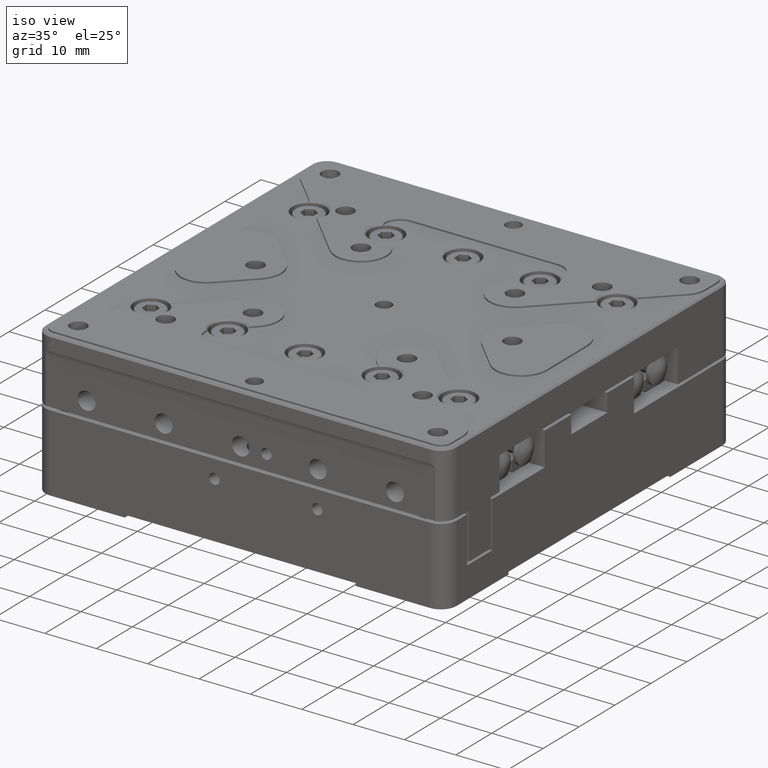
[diagram: clean part render]
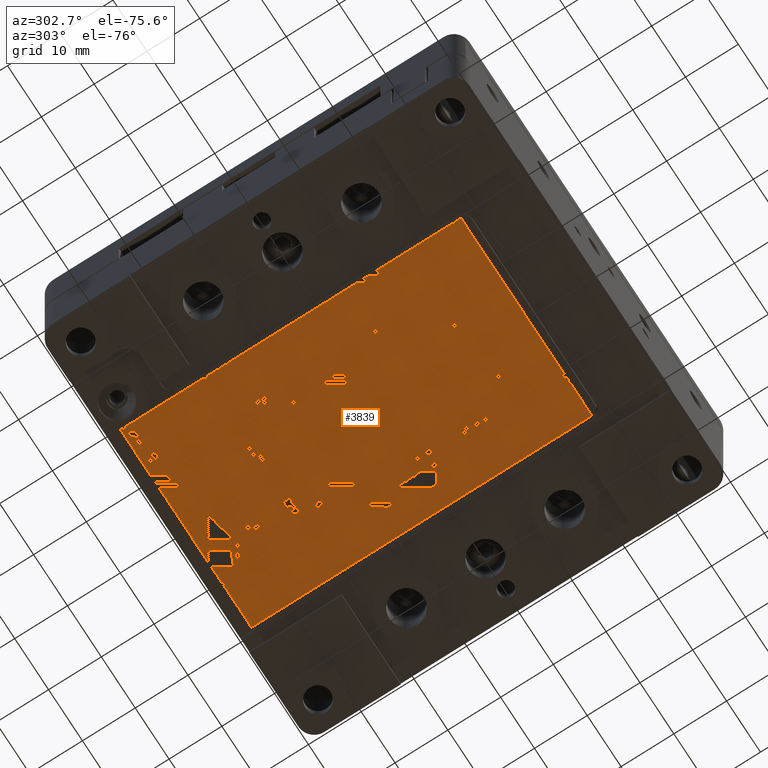
[diagram: tour spotlight — one face highlighted and labeled with its STEP entity id]
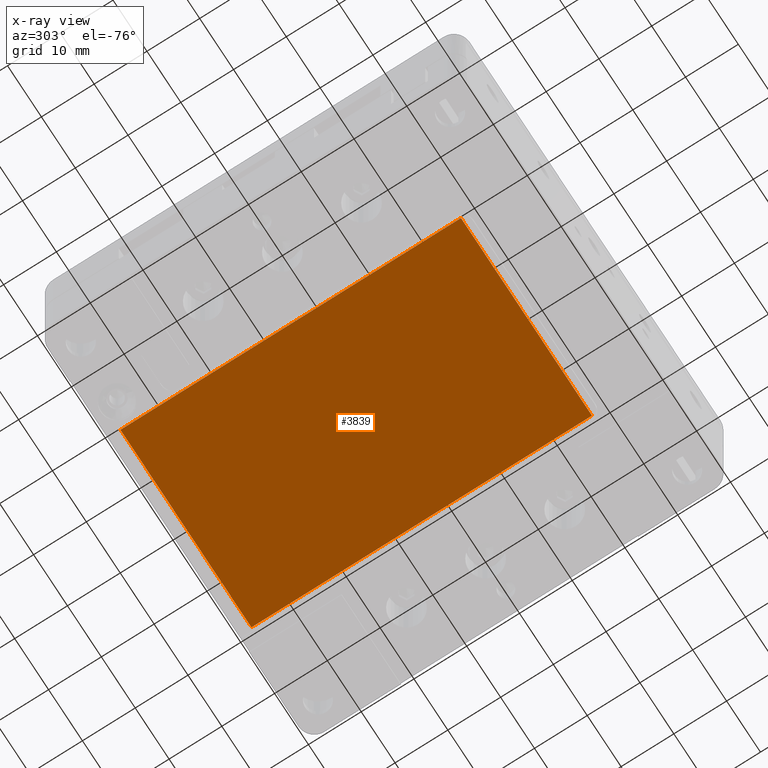
[diagram: x-ray of the same camera — body ghosted, this tour face saturated]
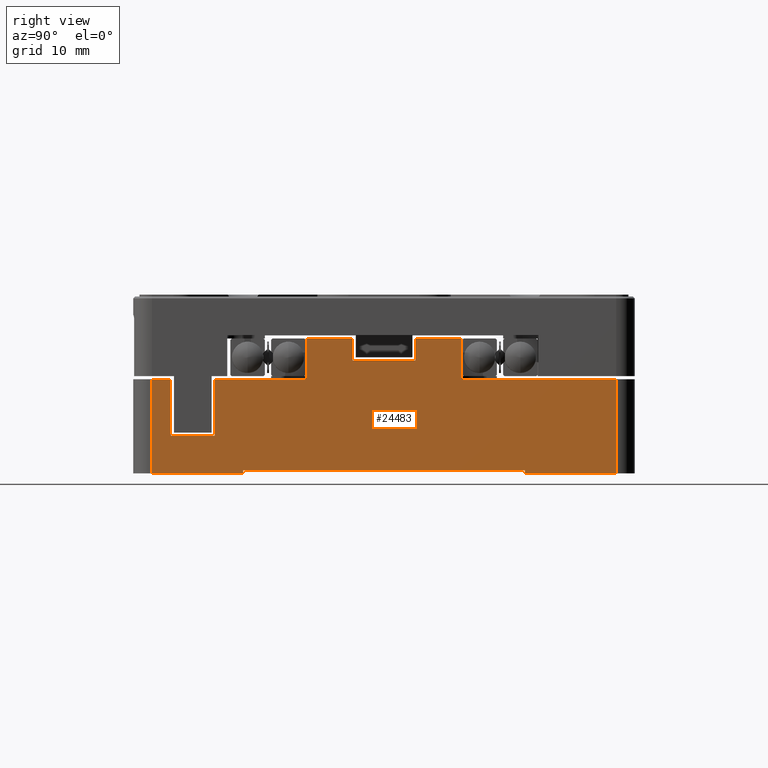
[diagram: tour spotlight — one face highlighted and labeled with its STEP entity id]
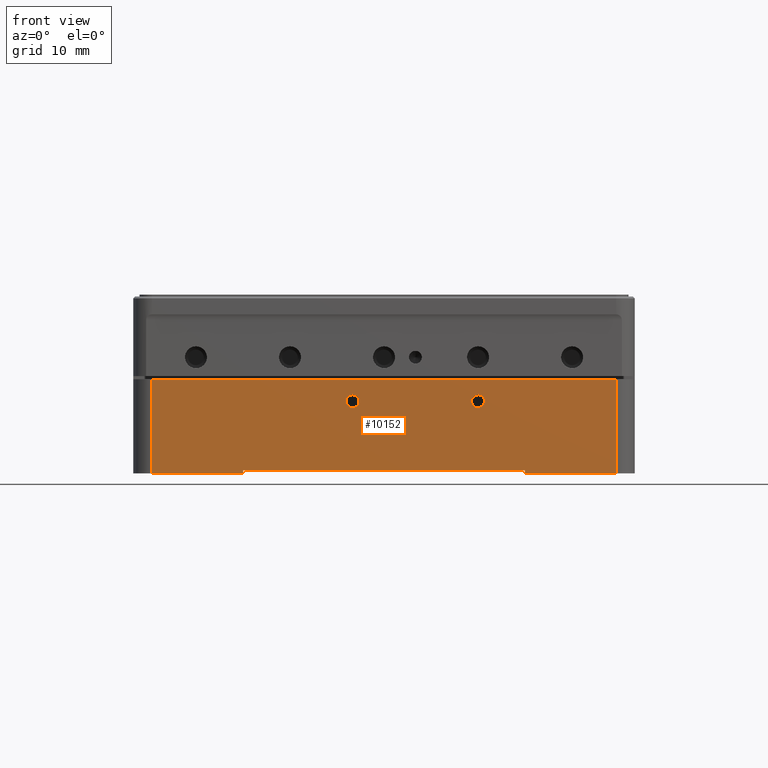
[diagram: tour spotlight — one face highlighted and labeled with its STEP entity id]
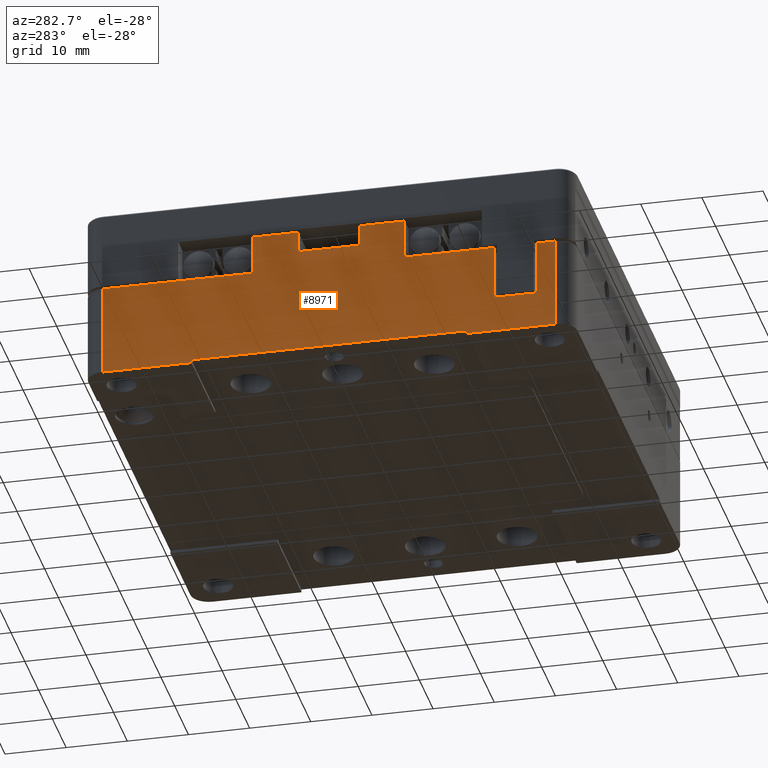
[diagram: tour spotlight — one face highlighted and labeled with its STEP entity id]
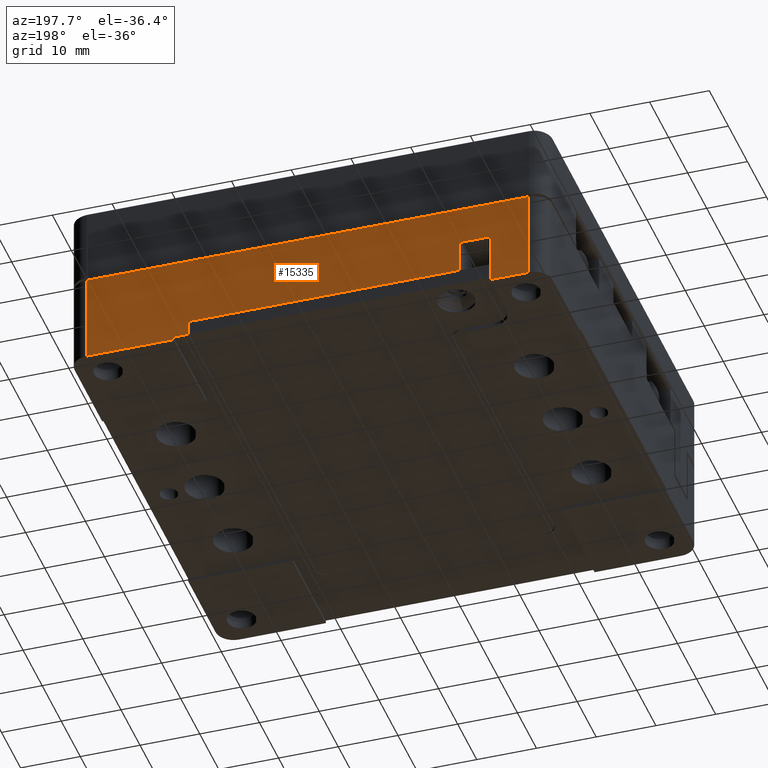
[diagram: tour spotlight — one face highlighted and labeled with its STEP entity id]
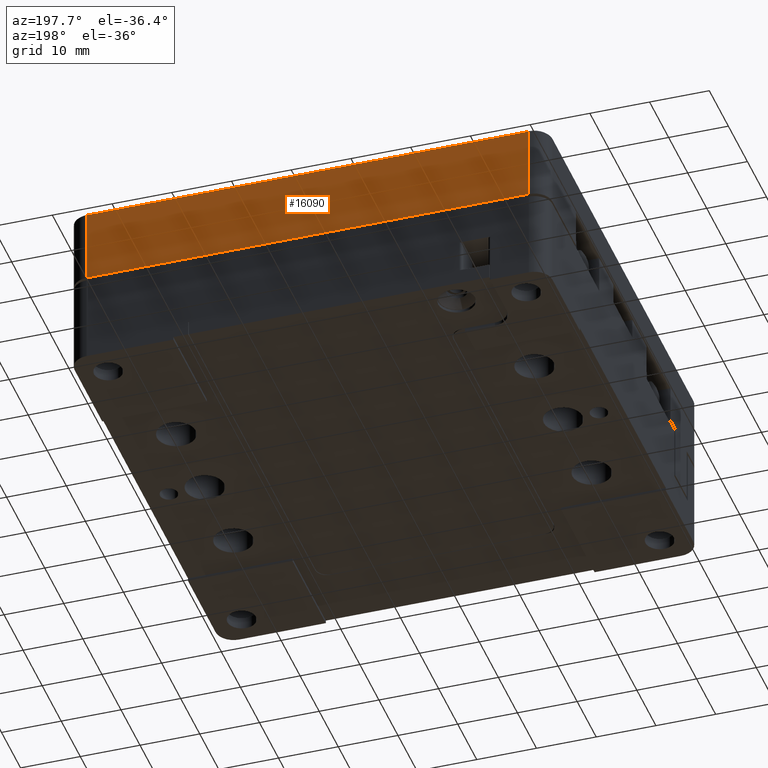
[diagram: tour spotlight — one face highlighted and labeled with its STEP entity id]
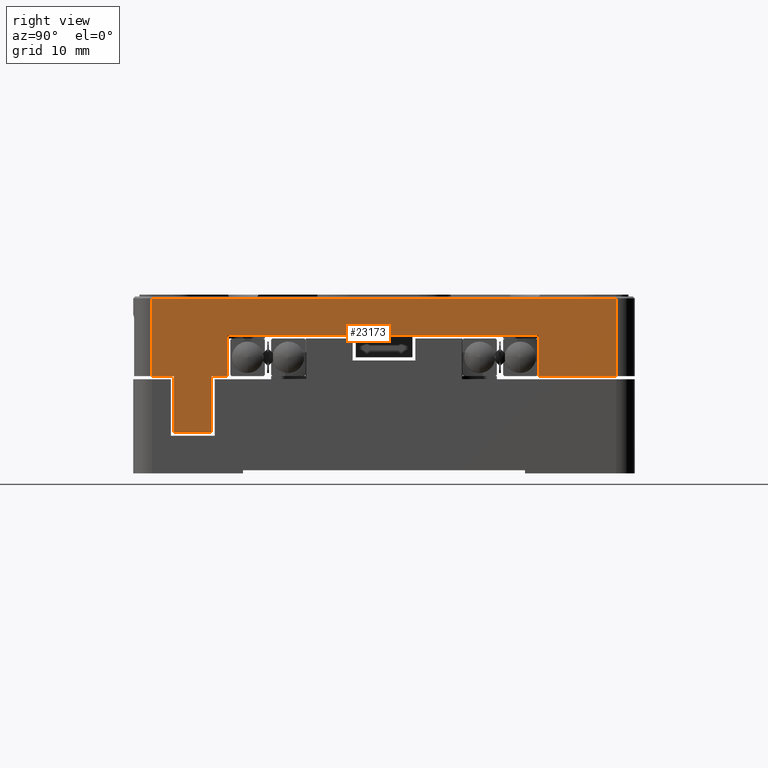
[diagram: tour spotlight — one face highlighted and labeled with its STEP entity id]
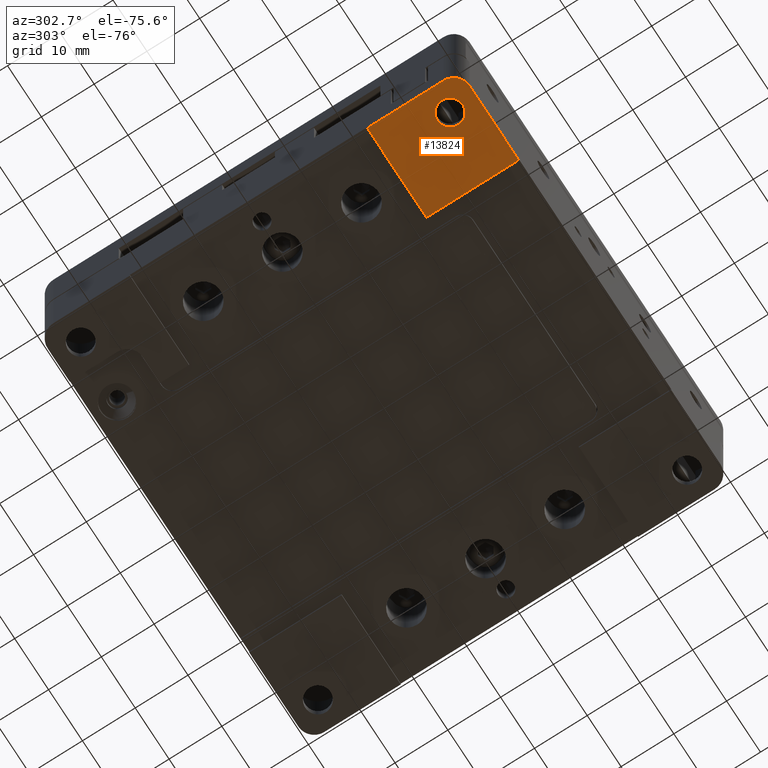
[diagram: tour spotlight — one face highlighted and labeled with its STEP entity id]
A machine part: a face-by-face anatomy tour. The part has 1495 B-rep faces; the first image is the clean iso view, then the 8 largest visible faces are spotlighted one at a time (largest first), each with its STEP entity span.

Face 1 — auxiliary view, entity #3839. An x-ray twin of the same camera follows (body ghosted, this face saturated) — the face is partly hidden behind the body. In plain terms, the highlighted planar face has unit normal (0, 0, -1).
Definition (entity closure, byte-faithful):
#667 = CARTESIAN_POINT ( 'NONE',  ( 0.000000000000000000, -27.00000000000000000, -14.50000000000000000 ) ) ;
#1474 = EDGE_CURVE ( 'NONE', #1959, #12785, #8003, .T. ) ;
#1959 = VERTEX_POINT ( 'NONE', #16216 ) ;
#2274 = LINE ( 'NONE', #20504, #20175 ) ;
#2277 = AXIS2_PLACEMENT_3D ( 'NONE', #16114, #27279, #7129 ) ;
#3006 = LINE ( 'NONE', #667, #17792 ) ;
#3596 = ORIENTED_EDGE ( 'NONE', *, *, #3836, .T. ) ;
#3836 = EDGE_CURVE ( 'NONE', #12785, #20528, #3006, .T. ) ;
#3839 = ADVANCED_FACE ( 'NONE', ( #12294 ), #14034, .T. ) ;
#4789 = DIRECTION ( 'NONE',  ( 0.000000000000000000, 1.000000000000000000, 0.000000000000000000 ) ) ;
#4883 = EDGE_CURVE ( 'NONE', #20528, #20351, #2274, .T. ) ;
#6727 = ORIENTED_EDGE ( 'NONE', *, *, #4883, .T. ) ;
#7129 = DIRECTION ( 'NONE',  ( 0.000000000000000000, -1.000000000000000000, 0.000000000000000000 ) ) ;
#8003 = LINE ( 'NONE', #9626, #21296 ) ;
#8173 = CARTESIAN_POINT ( 'NONE',  ( -19.33999999999999986, 37.54999999999999716, -14.50000000000000000 ) ) ;
#9230 = CARTESIAN_POINT ( 'NONE',  ( 0.000000000000000000, 37.54999999999999716, -14.50000000000000000 ) ) ;
#9529 = LINE ( 'NONE', #9230, #25965 ) ;
#9626 = CARTESIAN_POINT ( 'NONE',  ( 19.33999999999999986, 0.000000000000000000, -14.50000000000000000 ) ) ;
#12294 = FACE_OUTER_BOUND ( 'NONE', #28944, .T. ) ;
#12785 = VERTEX_POINT ( 'NONE', #27528 ) ;
#14034 = PLANE ( 'NONE',  #2277 ) ;
#14468 = ORIENTED_EDGE ( 'NONE', *, *, #26870, .T. ) ;
#15237 = ORIENTED_EDGE ( 'NONE', *, *, #1474, .T. ) ;
#16114 = CARTESIAN_POINT ( 'NONE',  ( 0.000000000000000000, 0.000000000000000000, -14.50000000000000000 ) ) ;
#16216 = CARTESIAN_POINT ( 'NONE',  ( 19.33999999999999986, 37.54999999999999716, -14.50000000000000000 ) ) ;
#16995 = DIRECTION ( 'NONE',  ( 0.000000000000000000, -1.000000000000000000, 0.000000000000000000 ) ) ;
#17792 = VECTOR ( 'NONE', #23155, 1000.000000000000000 ) ;
#20104 = DIRECTION ( 'NONE',  ( 1.000000000000000000, 0.000000000000000000, 0.000000000000000000 ) ) ;
#20175 = VECTOR ( 'NONE', #4789, 1000.000000000000000 ) ;
#20351 = VERTEX_POINT ( 'NONE', #8173 ) ;
#20504 = CARTESIAN_POINT ( 'NONE',  ( -19.33999999999999986, 0.000000000000000000, -14.50000000000000000 ) ) ;
#20528 = VERTEX_POINT ( 'NONE', #25340 ) ;
#21296 = VECTOR ( 'NONE', #16995, 1000.000000000000000 ) ;
#23155 = DIRECTION ( 'NONE',  ( -1.000000000000000000, 0.000000000000000000, 0.000000000000000000 ) ) ;
#25340 = CARTESIAN_POINT ( 'NONE',  ( -19.33999999999999986, -27.00000000000000000, -14.50000000000000000 ) ) ;
#25965 = VECTOR ( 'NONE', #20104, 1000.000000000000000 ) ;
#26870 = EDGE_CURVE ( 'NONE', #20351, #1959, #9529, .T. ) ;
#27279 = DIRECTION ( 'NONE',  ( 0.000000000000000000, 0.000000000000000000, -1.000000000000000000 ) ) ;
#27528 = CARTESIAN_POINT ( 'NONE',  ( 19.33999999999999986, -27.00000000000000000, -14.50000000000000000 ) ) ;
#28944 = EDGE_LOOP ( 'NONE', ( #6727, #14468, #15237, #3596 ) ) ;

Face 2 — right view, entity #24483. In plain terms, the highlighted planar face has unit normal (1, 0, 0).
Definition (entity closure, byte-faithful):
#11 = DIRECTION ( 'NONE',  ( 0.000000000000000000, 0.000000000000000000, -1.000000000000000000 ) ) ;
#32 = CARTESIAN_POINT ( 'NONE',  ( 40.00000000000000000, 37.00000000000000000, -15.00000000000000000 ) ) ;
#241 = VERTEX_POINT ( 'NONE', #12120 ) ;
#261 = DIRECTION ( 'NONE',  ( 0.000000000000000000, 0.000000000000000000, -1.000000000000000000 ) ) ;
#671 = LINE ( 'NONE', #21083, #23006 ) ;
#784 = EDGE_CURVE ( 'NONE', #2276, #14100, #1350, .T. ) ;
#971 = VECTOR ( 'NONE', #27433, 1000.000000000000000 ) ;
#1326 = CARTESIAN_POINT ( 'NONE',  ( 40.00000000000000000, 22.50000000000000000, -15.00000000000000000 ) ) ;
#1350 = LINE ( 'NONE', #14755, #16646 ) ;
#1747 = EDGE_CURVE ( 'NONE', #19365, #28092, #22106, .T. ) ;
#1940 = EDGE_CURVE ( 'NONE', #9904, #10081, #21036, .T. ) ;
#1962 = CARTESIAN_POINT ( 'NONE',  ( 40.00000000000000000, -5.000000000000000000, 0.000000000000000000 ) ) ;
#2057 = VERTEX_POINT ( 'NONE', #19446 ) ;
#2073 = LINE ( 'NONE', #26482, #17565 ) ;
#2276 = VERTEX_POINT ( 'NONE', #15756 ) ;
#2279 = CARTESIAN_POINT ( 'NONE',  ( 40.00000000000000000, -27.00000000000000000, -9.000000000000000000 ) ) ;
#2293 = EDGE_CURVE ( 'NONE', #241, #22777, #11191, .T. ) ;
#2320 = DIRECTION ( 'NONE',  ( 0.000000000000000000, 1.000000000000000000, 0.000000000000000000 ) ) ;
#2540 = DIRECTION ( 'NONE',  ( 0.000000000000000000, 1.000000000000000000, 0.000000000000000000 ) ) ;
#3072 = ORIENTED_EDGE ( 'NONE', *, *, #1940, .T. ) ;
#3627 = DIRECTION ( 'NONE',  ( 0.000000000000000000, -1.000000000000000000, 0.000000000000000000 ) ) ;
#4194 = VECTOR ( 'NONE', #22357, 1000.000000000000000 ) ;
#4321 = VERTEX_POINT ( 'NONE', #25176 ) ;
#4399 = VECTOR ( 'NONE', #8731, 1000.000000000000000 ) ;
#4645 = CARTESIAN_POINT ( 'NONE',  ( 40.00000000000000000, -37.00000000000000000, 0.000000000000000000 ) ) ;
#4798 = VERTEX_POINT ( 'NONE', #8498 ) ;
#5064 = VECTOR ( 'NONE', #28706, 1000.000000000000000 ) ;
#5097 = EDGE_CURVE ( 'NONE', #12020, #20955, #671, .T. ) ;
#5368 = CARTESIAN_POINT ( 'NONE',  ( 40.00000000000000000, 37.00000000000000000, 0.000000000000000000 ) ) ;
#5488 = LINE ( 'NONE', #7700, #12765 ) ;
#5543 = DIRECTION ( 'NONE',  ( 0.000000000000000000, -1.000000000000000000, 0.000000000000000000 ) ) ;
#5568 = ORIENTED_EDGE ( 'NONE', *, *, #21990, .T. ) ;
#5785 = EDGE_CURVE ( 'NONE', #23509, #4321, #24292, .T. ) ;
#5820 = VECTOR ( 'NONE', #12090, 1000.000000000000000 ) ;
#5891 = VERTEX_POINT ( 'NONE', #22505 ) ;
#6040 = ORIENTED_EDGE ( 'NONE', *, *, #7191, .T. ) ;
#6325 = EDGE_CURVE ( 'NONE', #14012, #5891, #8970, .T. ) ;
#6394 = CARTESIAN_POINT ( 'NONE',  ( 40.00000000000000000, 12.40000000000000036, 0.000000000000000000 ) ) ;
#6858 = LINE ( 'NONE', #4645, #27802 ) ;
#7191 = EDGE_CURVE ( 'NONE', #14100, #23509, #10927, .T. ) ;
#7248 = DIRECTION ( 'NONE',  ( 0.000000000000000000, 0.000000000000000000, 1.000000000000000000 ) ) ;
#7375 = LINE ( 'NONE', #24613, #23378 ) ;
#7389 = PLANE ( 'NONE',  #14063 ) ;
#7391 = EDGE_CURVE ( 'NONE', #28092, #241, #28836, .T. ) ;
#7700 = CARTESIAN_POINT ( 'NONE',  ( 40.00000000000000000, 0.000000000000000000, 0.000000000000000000 ) ) ;
#7867 = ORIENTED_EDGE ( 'NONE', *, *, #23214, .T. ) ;
#8498 = CARTESIAN_POINT ( 'NONE',  ( 40.00000000000000000, 5.000000000000000000, 3.000000000000000000 ) ) ;
#8731 = DIRECTION ( 'NONE',  ( 0.000000000000000000, 0.000000000000000000, 1.000000000000000000 ) ) ;
#8940 = ORIENTED_EDGE ( 'NONE', *, *, #15277, .T. ) ;
#8970 = LINE ( 'NONE', #26898, #22393 ) ;
#9025 = ORIENTED_EDGE ( 'NONE', *, *, #19141, .T. ) ;
#9526 = LINE ( 'NONE', #14224, #24477 ) ;
#9904 = VERTEX_POINT ( 'NONE', #5368 ) ;
#10081 = VERTEX_POINT ( 'NONE', #6394 ) ;
#10258 = CARTESIAN_POINT ( 'NONE',  ( 40.00000000000000000, 0.000000000000000000, 3.000000000000000000 ) ) ;
#10927 = LINE ( 'NONE', #28849, #15469 ) ;
#10956 = EDGE_CURVE ( 'NONE', #17234, #20350, #6858, .T. ) ;
#11102 = DIRECTION ( 'NONE',  ( 0.000000000000000000, 1.000000000000000000, 0.000000000000000000 ) ) ;
#11191 = LINE ( 'NONE', #20142, #13290 ) ;
#11805 = VERTEX_POINT ( 'NONE', #25144 ) ;
#11904 = ORIENTED_EDGE ( 'NONE', *, *, #7391, .T. ) ;
#12020 = VERTEX_POINT ( 'NONE', #1326 ) ;
#12090 = DIRECTION ( 'NONE',  ( 0.000000000000000000, -1.000000000000000000, 0.000000000000000000 ) ) ;
#12120 = CARTESIAN_POINT ( 'NONE',  ( 40.00000000000000000, -12.40000000000000036, 6.500000000000000000 ) ) ;
#12432 = ORIENTED_EDGE ( 'NONE', *, *, #20483, .T. ) ;
#12753 = ORIENTED_EDGE ( 'NONE', *, *, #784, .T. ) ;
#12765 = VECTOR ( 'NONE', #16686, 1000.000000000000000 ) ;
#13290 = VECTOR ( 'NONE', #11, 1000.000000000000000 ) ;
#13481 = VECTOR ( 'NONE', #5543, 1000.000000000000000 ) ;
#13546 = CARTESIAN_POINT ( 'NONE',  ( 40.00000000000000000, -34.00000000000000000, 0.000000000000000000 ) ) ;
#13625 = CARTESIAN_POINT ( 'NONE',  ( 40.00000000000000000, 37.00000000000000000, 0.000000000000000000 ) ) ;
#13627 = DIRECTION ( 'NONE',  ( 0.000000000000000000, 0.000000000000000000, -1.000000000000000000 ) ) ;
#13740 = DIRECTION ( 'NONE',  ( 1.000000000000000000, 0.000000000000000000, 0.000000000000000000 ) ) ;
#14012 = VERTEX_POINT ( 'NONE', #22865 ) ;
#14063 = AXIS2_PLACEMENT_3D ( 'NONE', #24913, #13740, #2540 ) ;
#14100 = VERTEX_POINT ( 'NONE', #2279 ) ;
#14224 = CARTESIAN_POINT ( 'NONE',  ( 40.00000000000000000, 5.000000000000000000, 0.000000000000000000 ) ) ;
#14755 = CARTESIAN_POINT ( 'NONE',  ( 40.00000000000000000, -27.00000000000000000, -9.000000000000000000 ) ) ;
#15037 = VECTOR ( 'NONE', #7248, 1000.000000000000000 ) ;
#15117 = ORIENTED_EDGE ( 'NONE', *, *, #2293, .T. ) ;
#15277 = EDGE_CURVE ( 'NONE', #20955, #9904, #16128, .T. ) ;
#15423 = LINE ( 'NONE', #21885, #19789 ) ;
#15469 = VECTOR ( 'NONE', #22235, 1000.000000000000000 ) ;
#15526 = CARTESIAN_POINT ( 'NONE',  ( 40.00000000000000000, 0.000000000000000000, -15.00000000000000000 ) ) ;
#15624 = DIRECTION ( 'NONE',  ( 0.000000000000000000, 0.000000000000000000, 1.000000000000000000 ) ) ;
#15756 = CARTESIAN_POINT ( 'NONE',  ( 40.00000000000000000, -27.00000000000000000, 0.000000000000000000 ) ) ;
#15763 = CARTESIAN_POINT ( 'NONE',  ( 40.00000000000000000, 0.000000000000000000, 6.500000000000000000 ) ) ;
#15948 = FACE_OUTER_BOUND ( 'NONE', #18059, .T. ) ;
#16128 = LINE ( 'NONE', #13625, #971 ) ;
#16381 = CARTESIAN_POINT ( 'NONE',  ( 40.00000000000000000, 12.40000000000000036, 0.000000000000000000 ) ) ;
#16424 = ORIENTED_EDGE ( 'NONE', *, *, #28046, .T. ) ;
#16646 = VECTOR ( 'NONE', #23705, 1000.000000000000000 ) ;
#16686 = DIRECTION ( 'NONE',  ( 0.000000000000000000, -1.000000000000000000, 0.000000000000000000 ) ) ;
#16734 = CARTESIAN_POINT ( 'NONE',  ( 40.00000000000000000, 0.000000000000000000, 0.000000000000000000 ) ) ;
#16895 = VECTOR ( 'NONE', #11102, 1000.000000000000000 ) ;
#17177 = LINE ( 'NONE', #10258, #13481 ) ;
#17234 = VERTEX_POINT ( 'NONE', #27752 ) ;
#17389 = CARTESIAN_POINT ( 'NONE',  ( 40.00000000000000000, -5.000000000000000000, 6.500000000000000000 ) ) ;
#17565 = VECTOR ( 'NONE', #15624, 1000.000000000000000 ) ;
#17963 = ORIENTED_EDGE ( 'NONE', *, *, #1747, .T. ) ;
#18059 = EDGE_LOOP ( 'NONE', ( #11904, #15117, #5568, #12753, #6040, #27576, #24622, #23911, #12432, #16424, #19804, #9025, #23695, #8940, #3072, #21063, #20549, #7867, #25584, #17963 ) ) ;
#18498 = EDGE_CURVE ( 'NONE', #4798, #19365, #17177, .T. ) ;
#18694 = CARTESIAN_POINT ( 'NONE',  ( 40.00000000000000000, 0.000000000000000000, 0.000000000000000000 ) ) ;
#19141 = EDGE_CURVE ( 'NONE', #5891, #12020, #7375, .T. ) ;
#19365 = VERTEX_POINT ( 'NONE', #21933 ) ;
#19446 = CARTESIAN_POINT ( 'NONE',  ( 40.00000000000000000, 12.40000000000000036, 6.500000000000000000 ) ) ;
#19784 = CARTESIAN_POINT ( 'NONE',  ( 40.00000000000000000, -37.00000000000000000, -15.00000000000000000 ) ) ;
#19789 = VECTOR ( 'NONE', #22178, 1000.000000000000000 ) ;
#19804 = ORIENTED_EDGE ( 'NONE', *, *, #6325, .T. ) ;
#20142 = CARTESIAN_POINT ( 'NONE',  ( 40.00000000000000000, -12.40000000000000036, 0.000000000000000000 ) ) ;
#20199 = LINE ( 'NONE', #15526, #16895 ) ;
#20350 = VERTEX_POINT ( 'NONE', #19784 ) ;
#20460 = CARTESIAN_POINT ( 'NONE',  ( 40.00000000000000000, -34.00000000000000000, -9.000000000000000000 ) ) ;
#20483 = EDGE_CURVE ( 'NONE', #20350, #11805, #20199, .T. ) ;
#20549 = ORIENTED_EDGE ( 'NONE', *, *, #25494, .T. ) ;
#20600 = DIRECTION ( 'NONE',  ( 0.000000000000000000, 0.000000000000000000, -1.000000000000000000 ) ) ;
#20669 = VERTEX_POINT ( 'NONE', #25783 ) ;
#20916 = LINE ( 'NONE', #16381, #15037 ) ;
#20955 = VERTEX_POINT ( 'NONE', #32 ) ;
#21036 = LINE ( 'NONE', #18694, #5820 ) ;
#21063 = ORIENTED_EDGE ( 'NONE', *, *, #24429, .T. ) ;
#21083 = CARTESIAN_POINT ( 'NONE',  ( 40.00000000000000000, 0.000000000000000000, -15.00000000000000000 ) ) ;
#21885 = CARTESIAN_POINT ( 'NONE',  ( 40.00000000000000000, 0.000000000000000000, 6.500000000000000000 ) ) ;
#21933 = CARTESIAN_POINT ( 'NONE',  ( 40.00000000000000000, -5.000000000000000000, 3.000000000000000000 ) ) ;
#21990 = EDGE_CURVE ( 'NONE', #22777, #2276, #5488, .T. ) ;
#22106 = LINE ( 'NONE', #1962, #4399 ) ;
#22178 = DIRECTION ( 'NONE',  ( 0.000000000000000000, -1.000000000000000000, 0.000000000000000000 ) ) ;
#22235 = DIRECTION ( 'NONE',  ( 0.000000000000000000, -1.000000000000000000, 0.000000000000000000 ) ) ;
#22357 = DIRECTION ( 'NONE',  ( 0.000000000000000000, -1.000000000000000000, 0.000000000000000000 ) ) ;
#22393 = VECTOR ( 'NONE', #2320, 1000.000000000000000 ) ;
#22505 = CARTESIAN_POINT ( 'NONE',  ( 40.00000000000000000, 22.50000000000000000, -14.50000000000000000 ) ) ;
#22581 = VECTOR ( 'NONE', #3627, 1000.000000000000000 ) ;
#22777 = VERTEX_POINT ( 'NONE', #22782 ) ;
#22782 = CARTESIAN_POINT ( 'NONE',  ( 40.00000000000000000, -12.40000000000000036, 0.000000000000000000 ) ) ;
#22865 = CARTESIAN_POINT ( 'NONE',  ( 40.00000000000000000, -22.50000000000000000, -14.50000000000000000 ) ) ;
#23006 = VECTOR ( 'NONE', #25214, 1000.000000000000000 ) ;
#23214 = EDGE_CURVE ( 'NONE', #20669, #4798, #9526, .T. ) ;
#23309 = EDGE_CURVE ( 'NONE', #4321, #17234, #26259, .T. ) ;
#23378 = VECTOR ( 'NONE', #20600, 1000.000000000000000 ) ;
#23509 = VERTEX_POINT ( 'NONE', #20460 ) ;
#23695 = ORIENTED_EDGE ( 'NONE', *, *, #5097, .T. ) ;
#23705 = DIRECTION ( 'NONE',  ( 0.000000000000000000, 0.000000000000000000, -1.000000000000000000 ) ) ;
#23911 = ORIENTED_EDGE ( 'NONE', *, *, #10956, .T. ) ;
#24292 = LINE ( 'NONE', #13546, #5064 ) ;
#24429 = EDGE_CURVE ( 'NONE', #10081, #2057, #20916, .T. ) ;
#24477 = VECTOR ( 'NONE', #261, 1000.000000000000000 ) ;
#24483 = ADVANCED_FACE ( 'NONE', ( #15948 ), #7389, .T. ) ;
#24613 = CARTESIAN_POINT ( 'NONE',  ( 40.00000000000000000, 22.50000000000000000, -15.00000000000000000 ) ) ;
#24622 = ORIENTED_EDGE ( 'NONE', *, *, #23309, .T. ) ;
#24913 = CARTESIAN_POINT ( 'NONE',  ( 40.00000000000000000, 0.000000000000000000, 0.000000000000000000 ) ) ;
#25144 = CARTESIAN_POINT ( 'NONE',  ( 40.00000000000000000, -22.50000000000000000, -15.00000000000000000 ) ) ;
#25176 = CARTESIAN_POINT ( 'NONE',  ( 40.00000000000000000, -34.00000000000000000, 0.000000000000000000 ) ) ;
#25214 = DIRECTION ( 'NONE',  ( 0.000000000000000000, 1.000000000000000000, 0.000000000000000000 ) ) ;
#25494 = EDGE_CURVE ( 'NONE', #2057, #20669, #15423, .T. ) ;
#25584 = ORIENTED_EDGE ( 'NONE', *, *, #18498, .T. ) ;
#25783 = CARTESIAN_POINT ( 'NONE',  ( 40.00000000000000000, 5.000000000000000000, 6.500000000000000000 ) ) ;
#26259 = LINE ( 'NONE', #16734, #22581 ) ;
#26482 = CARTESIAN_POINT ( 'NONE',  ( 40.00000000000000000, -22.50000000000000000, -15.00000000000000000 ) ) ;
#26898 = CARTESIAN_POINT ( 'NONE',  ( 40.00000000000000000, 0.000000000000000000, -14.50000000000000000 ) ) ;
#27433 = DIRECTION ( 'NONE',  ( 0.000000000000000000, 0.000000000000000000, 1.000000000000000000 ) ) ;
#27576 = ORIENTED_EDGE ( 'NONE', *, *, #5785, .T. ) ;
#27752 = CARTESIAN_POINT ( 'NONE',  ( 40.00000000000000000, -37.00000000000000000, 0.000000000000000000 ) ) ;
#27802 = VECTOR ( 'NONE', #13627, 1000.000000000000000 ) ;
#28046 = EDGE_CURVE ( 'NONE', #11805, #14012, #2073, .T. ) ;
#28092 = VERTEX_POINT ( 'NONE', #17389 ) ;
#28706 = DIRECTION ( 'NONE',  ( 0.000000000000000000, 0.000000000000000000, 1.000000000000000000 ) ) ;
#28836 = LINE ( 'NONE', #15763, #4194 ) ;
#28849 = CARTESIAN_POINT ( 'NONE',  ( 40.00000000000000000, -34.00000000000000000, -9.000000000000000000 ) ) ;

Face 3 — front view, entity #10152. In plain terms, the highlighted planar face has unit normal (0, -1, 0).
Definition (entity closure, byte-faithful):
#616 = EDGE_LOOP ( 'NONE', ( #8014, #25755 ) ) ;
#1738 = DIRECTION ( 'NONE',  ( -1.000000000000000000, 0.000000000000000000, 0.000000000000000000 ) ) ;
#2174 = CARTESIAN_POINT ( 'NONE',  ( -37.00000000000000000, -40.00000000000000000, -15.00000000000000000 ) ) ;
#2610 = CARTESIAN_POINT ( 'NONE',  ( -22.50000000000000000, -40.00000000000000000, -14.50000000000000000 ) ) ;
#2664 = ORIENTED_EDGE ( 'NONE', *, *, #10695, .F. ) ;
#2679 = FACE_OUTER_BOUND ( 'NONE', #19170, .T. ) ;
#2710 = AXIS2_PLACEMENT_3D ( 'NONE', #27358, #9273, #4990 ) ;
#2795 = VECTOR ( 'NONE', #22056, 1000.000000000000000 ) ;
#2814 = EDGE_CURVE ( 'NONE', #8304, #12600, #18776, .T. ) ;
#2942 = CARTESIAN_POINT ( 'NONE',  ( 37.00000000000000000, -40.00000000000000000, -15.00000000000000000 ) ) ;
#2984 = DIRECTION ( 'NONE',  ( 0.000000000000000000, -1.000000000000000000, 0.000000000000000000 ) ) ;
#3071 = CARTESIAN_POINT ( 'NONE',  ( 22.50000000000000000, -40.00000000000000000, -14.50000000000000000 ) ) ;
#3286 = CARTESIAN_POINT ( 'NONE',  ( -5.000000000000000000, -40.00000000000000000, -2.475000000000000089 ) ) ;
#3337 = VERTEX_POINT ( 'NONE', #2174 ) ;
#3753 = VECTOR ( 'NONE', #5093, 1000.000000000000000 ) ;
#4050 = ORIENTED_EDGE ( 'NONE', *, *, #7367, .T. ) ;
#4374 = CIRCLE ( 'NONE', #25987, 1.025000000000000355 ) ;
#4990 = DIRECTION ( 'NONE',  ( 0.000000000000000000, 0.000000000000000000, -1.000000000000000000 ) ) ;
#5093 = DIRECTION ( 'NONE',  ( 1.000000000000000000, 0.000000000000000000, 0.000000000000000000 ) ) ;
#5362 = CARTESIAN_POINT ( 'NONE',  ( -5.000000000000000000, -40.00000000000000000, -3.500000000000000000 ) ) ;
#6046 = ORIENTED_EDGE ( 'NONE', *, *, #16782, .T. ) ;
#6117 = LINE ( 'NONE', #7874, #8578 ) ;
#6430 = CARTESIAN_POINT ( 'NONE',  ( -40.00000000000000000, -40.00000000000000000, -15.00000000000000000 ) ) ;
#7121 = DIRECTION ( 'NONE',  ( 0.000000000000000000, 0.000000000000000000, -1.000000000000000000 ) ) ;
#7367 = EDGE_CURVE ( 'NONE', #16379, #9257, #11194, .T. ) ;
#7874 = CARTESIAN_POINT ( 'NONE',  ( 37.00000000000000000, -40.00000000000000000, 34.52740000000000009 ) ) ;
#8014 = ORIENTED_EDGE ( 'NONE', *, *, #12234, .T. ) ;
#8227 = DIRECTION ( 'NONE',  ( 0.000000000000000000, 1.000000000000000000, 0.000000000000000000 ) ) ;
#8304 = VERTEX_POINT ( 'NONE', #15409 ) ;
#8578 = VECTOR ( 'NONE', #27885, 1000.000000000000000 ) ;
#9257 = VERTEX_POINT ( 'NONE', #2610 ) ;
#9273 = DIRECTION ( 'NONE',  ( 0.000000000000000000, 1.000000000000000000, 0.000000000000000000 ) ) ;
#9821 = DIRECTION ( 'NONE',  ( 0.000000000000000000, 0.000000000000000000, -1.000000000000000000 ) ) ;
#10152 = ADVANCED_FACE ( 'NONE', ( #2679, #11532, #16092 ), #18002, .T. ) ;
#10695 = EDGE_CURVE ( 'NONE', #3337, #8304, #19092, .T. ) ;
#11194 = LINE ( 'NONE', #13263, #22493 ) ;
#11206 = EDGE_CURVE ( 'NONE', #12600, #14522, #6117, .T. ) ;
#11302 = VERTEX_POINT ( 'NONE', #15676 ) ;
#11437 = CARTESIAN_POINT ( 'NONE',  ( 15.00000000000000000, -40.00000000000000000, -2.475000000000000089 ) ) ;
#11532 = FACE_BOUND ( 'NONE', #21712, .T. ) ;
#11888 = LINE ( 'NONE', #16889, #14785 ) ;
#12234 = EDGE_CURVE ( 'NONE', #13668, #24503, #21754, .T. ) ;
#12489 = DIRECTION ( 'NONE',  ( 0.000000000000000000, 0.000000000000000000, 1.000000000000000000 ) ) ;
#12600 = VERTEX_POINT ( 'NONE', #13572 ) ;
#12669 = LINE ( 'NONE', #21624, #2795 ) ;
#12817 = ORIENTED_EDGE ( 'NONE', *, *, #28831, .T. ) ;
#13263 = CARTESIAN_POINT ( 'NONE',  ( -22.50000000000000000, -40.00000000000000000, -15.00000000000000000 ) ) ;
#13284 = EDGE_CURVE ( 'NONE', #24067, #15342, #20568, .T. ) ;
#13541 = EDGE_CURVE ( 'NONE', #26553, #9257, #15443, .T. ) ;
#13572 = CARTESIAN_POINT ( 'NONE',  ( 37.00000000000000000, -40.00000000000000000, 0.000000000000000000 ) ) ;
#13668 = VERTEX_POINT ( 'NONE', #16451 ) ;
#13771 = AXIS2_PLACEMENT_3D ( 'NONE', #5362, #28015, #27721 ) ;
#13886 = CARTESIAN_POINT ( 'NONE',  ( -5.000000000000000000, -40.00000000000000000, -3.500000000000000000 ) ) ;
#14522 = VERTEX_POINT ( 'NONE', #2942 ) ;
#14785 = VECTOR ( 'NONE', #9821, 1000.000000000000000 ) ;
#15342 = VERTEX_POINT ( 'NONE', #27294 ) ;
#15409 = CARTESIAN_POINT ( 'NONE',  ( -37.00000000000000000, -40.00000000000000000, 0.000000000000000000 ) ) ;
#15443 = LINE ( 'NONE', #24395, #15471 ) ;
#15471 = VECTOR ( 'NONE', #15792, 1000.000000000000000 ) ;
#15585 = ORIENTED_EDGE ( 'NONE', *, *, #2814, .F. ) ;
#15676 = CARTESIAN_POINT ( 'NONE',  ( 22.50000000000000000, -40.00000000000000000, -15.00000000000000000 ) ) ;
#15742 = ORIENTED_EDGE ( 'NONE', *, *, #19928, .F. ) ;
#15792 = DIRECTION ( 'NONE',  ( -1.000000000000000000, 0.000000000000000000, 0.000000000000000000 ) ) ;
#16092 = FACE_BOUND ( 'NONE', #616, .T. ) ;
#16379 = VERTEX_POINT ( 'NONE', #27968 ) ;
#16451 = CARTESIAN_POINT ( 'NONE',  ( -5.000000000000000000, -40.00000000000000000, -4.525000000000000355 ) ) ;
#16782 = EDGE_CURVE ( 'NONE', #15342, #24067, #24710, .T. ) ;
#16889 = CARTESIAN_POINT ( 'NONE',  ( 22.50000000000000000, -40.00000000000000000, 0.000000000000000000 ) ) ;
#17526 = ORIENTED_EDGE ( 'NONE', *, *, #24973, .F. ) ;
#18002 = PLANE ( 'NONE',  #21638 ) ;
#18424 = CARTESIAN_POINT ( 'NONE',  ( -40.00000000000000000, -40.00000000000000000, 0.000000000000000000 ) ) ;
#18709 = VECTOR ( 'NONE', #1738, 1000.000000000000000 ) ;
#18776 = LINE ( 'NONE', #27756, #3753 ) ;
#19092 = LINE ( 'NONE', #19532, #26364 ) ;
#19170 = EDGE_LOOP ( 'NONE', ( #4050, #23176, #12817, #17526, #28070, #15585, #2664, #15742 ) ) ;
#19532 = CARTESIAN_POINT ( 'NONE',  ( -37.00000000000000000, -40.00000000000000000, -43.02740000000000009 ) ) ;
#19928 = EDGE_CURVE ( 'NONE', #16379, #3337, #26569, .T. ) ;
#20069 = DIRECTION ( 'NONE',  ( 0.000000000000000000, 1.000000000000000000, 0.000000000000000000 ) ) ;
#20568 = CIRCLE ( 'NONE', #2710, 1.025000000000000355 ) ;
#21522 = ORIENTED_EDGE ( 'NONE', *, *, #13284, .T. ) ;
#21624 = CARTESIAN_POINT ( 'NONE',  ( -40.00000000000000000, -40.00000000000000000, -15.00000000000000000 ) ) ;
#21638 = AXIS2_PLACEMENT_3D ( 'NONE', #18424, #2984, #24765 ) ;
#21712 = EDGE_LOOP ( 'NONE', ( #6046, #21522 ) ) ;
#21754 = CIRCLE ( 'NONE', #13771, 1.025000000000000355 ) ;
#22056 = DIRECTION ( 'NONE',  ( -1.000000000000000000, 0.000000000000000000, 0.000000000000000000 ) ) ;
#22493 = VECTOR ( 'NONE', #26925, 1000.000000000000000 ) ;
#22829 = AXIS2_PLACEMENT_3D ( 'NONE', #23960, #8227, #26027 ) ;
#23176 = ORIENTED_EDGE ( 'NONE', *, *, #13541, .F. ) ;
#23960 = CARTESIAN_POINT ( 'NONE',  ( 15.00000000000000000, -40.00000000000000000, -3.500000000000000000 ) ) ;
#24067 = VERTEX_POINT ( 'NONE', #11437 ) ;
#24395 = CARTESIAN_POINT ( 'NONE',  ( 0.000000000000000000, -40.00000000000000000, -14.50000000000000000 ) ) ;
#24503 = VERTEX_POINT ( 'NONE', #3286 ) ;
#24710 = CIRCLE ( 'NONE', #22829, 1.025000000000000355 ) ;
#24765 = DIRECTION ( 'NONE',  ( 0.000000000000000000, 0.000000000000000000, -1.000000000000000000 ) ) ;
#24973 = EDGE_CURVE ( 'NONE', #14522, #11302, #12669, .T. ) ;
#25755 = ORIENTED_EDGE ( 'NONE', *, *, #27300, .T. ) ;
#25987 = AXIS2_PLACEMENT_3D ( 'NONE', #13886, #20069, #7121 ) ;
#26027 = DIRECTION ( 'NONE',  ( 0.000000000000000000, 0.000000000000000000, -1.000000000000000000 ) ) ;
#26364 = VECTOR ( 'NONE', #12489, 1000.000000000000000 ) ;
#26553 = VERTEX_POINT ( 'NONE', #3071 ) ;
#26569 = LINE ( 'NONE', #6430, #18709 ) ;
#26925 = DIRECTION ( 'NONE',  ( 0.000000000000000000, 0.000000000000000000, 1.000000000000000000 ) ) ;
#27294 = CARTESIAN_POINT ( 'NONE',  ( 15.00000000000000000, -40.00000000000000000, -4.525000000000000355 ) ) ;
#27300 = EDGE_CURVE ( 'NONE', #24503, #13668, #4374, .T. ) ;
#27358 = CARTESIAN_POINT ( 'NONE',  ( 15.00000000000000000, -40.00000000000000000, -3.500000000000000000 ) ) ;
#27721 = DIRECTION ( 'NONE',  ( 0.000000000000000000, 0.000000000000000000, -1.000000000000000000 ) ) ;
#27756 = CARTESIAN_POINT ( 'NONE',  ( -40.00000000000000000, -40.00000000000000000, 0.000000000000000000 ) ) ;
#27885 = DIRECTION ( 'NONE',  ( 0.000000000000000000, 0.000000000000000000, -1.000000000000000000 ) ) ;
#27968 = CARTESIAN_POINT ( 'NONE',  ( -22.50000000000000000, -40.00000000000000000, -15.00000000000000000 ) ) ;
#28015 = DIRECTION ( 'NONE',  ( 0.000000000000000000, 1.000000000000000000, 0.000000000000000000 ) ) ;
#28070 = ORIENTED_EDGE ( 'NONE', *, *, #11206, .F. ) ;
#28831 = EDGE_CURVE ( 'NONE', #26553, #11302, #11888, .T. ) ;

Face 4 — auxiliary view, entity #8971. In plain terms, the highlighted planar face has unit normal (1, 0, 0).
Definition (entity closure, byte-faithful):
#50 = EDGE_CURVE ( 'NONE', #874, #1979, #22710, .T. ) ;
#115 = LINE ( 'NONE', #4804, #20694 ) ;
#151 = VERTEX_POINT ( 'NONE', #2257 ) ;
#493 = DIRECTION ( 'NONE',  ( 0.000000000000000000, 0.000000000000000000, 1.000000000000000000 ) ) ;
#499 = DIRECTION ( 'NONE',  ( 0.000000000000000000, 1.000000000000000000, 0.000000000000000000 ) ) ;
#826 = VECTOR ( 'NONE', #15667, 1000.000000000000000 ) ;
#874 = VERTEX_POINT ( 'NONE', #4276 ) ;
#933 = VERTEX_POINT ( 'NONE', #14066 ) ;
#1181 = LINE ( 'NONE', #5436, #10325 ) ;
#1328 = LINE ( 'NONE', #14419, #26671 ) ;
#1534 = CARTESIAN_POINT ( 'NONE',  ( -40.00000000000000000, -34.00000000000000000, -9.000000000000000000 ) ) ;
#1629 = DIRECTION ( 'NONE',  ( 1.000000000000000000, 0.000000000000000000, 0.000000000000000000 ) ) ;
#1654 = DIRECTION ( 'NONE',  ( 0.000000000000000000, -1.000000000000000000, 0.000000000000000000 ) ) ;
#1687 = CARTESIAN_POINT ( 'NONE',  ( -40.00000000000000000, 5.000000000000000000, 3.000000000000000000 ) ) ;
#1722 = CARTESIAN_POINT ( 'NONE',  ( -40.00000000000000000, -22.50000000000000000, -15.00000000000000000 ) ) ;
#1979 = VERTEX_POINT ( 'NONE', #12250 ) ;
#2166 = VERTEX_POINT ( 'NONE', #8123 ) ;
#2206 = EDGE_CURVE ( 'NONE', #19060, #17430, #25005, .T. ) ;
#2257 = CARTESIAN_POINT ( 'NONE',  ( -40.00000000000000000, 37.00000000000000000, -15.00000000000000000 ) ) ;
#2410 = DIRECTION ( 'NONE',  ( 0.000000000000000000, 0.000000000000000000, -1.000000000000000000 ) ) ;
#2477 = VECTOR ( 'NONE', #24713, 1000.000000000000000 ) ;
#2712 = EDGE_CURVE ( 'NONE', #2166, #19060, #18939, .T. ) ;
#2834 = LINE ( 'NONE', #7247, #4192 ) ;
#3581 = CARTESIAN_POINT ( 'NONE',  ( -40.00000000000000000, 12.40000000000000036, 0.000000000000000000 ) ) ;
#3727 = DIRECTION ( 'NONE',  ( 0.000000000000000000, 1.000000000000000000, 0.000000000000000000 ) ) ;
#3782 = VERTEX_POINT ( 'NONE', #13340 ) ;
#3875 = VECTOR ( 'NONE', #24345, 1000.000000000000000 ) ;
#3939 = DIRECTION ( 'NONE',  ( 0.000000000000000000, -1.000000000000000000, 0.000000000000000000 ) ) ;
#3973 = VERTEX_POINT ( 'NONE', #1687 ) ;
#4192 = VECTOR ( 'NONE', #493, 1000.000000000000000 ) ;
#4276 = CARTESIAN_POINT ( 'NONE',  ( -40.00000000000000000, -12.40000000000000036, 6.500000000000000000 ) ) ;
#4382 = ORIENTED_EDGE ( 'NONE', *, *, #23372, .T. ) ;
#4438 = VERTEX_POINT ( 'NONE', #5782 ) ;
#4610 = VECTOR ( 'NONE', #15015, 1000.000000000000000 ) ;
#4669 = ORIENTED_EDGE ( 'NONE', *, *, #14018, .F. ) ;
#4804 = CARTESIAN_POINT ( 'NONE',  ( -40.00000000000000000, 0.000000000000000000, 0.000000000000000000 ) ) ;
#4815 = CARTESIAN_POINT ( 'NONE',  ( -40.00000000000000000, -37.00000000000000000, 0.000000000000000000 ) ) ;
#5156 = ORIENTED_EDGE ( 'NONE', *, *, #5287, .F. ) ;
#5202 = VERTEX_POINT ( 'NONE', #14801 ) ;
#5287 = EDGE_CURVE ( 'NONE', #1979, #12155, #10954, .T. ) ;
#5295 = FACE_OUTER_BOUND ( 'NONE', #20346, .T. ) ;
#5436 = CARTESIAN_POINT ( 'NONE',  ( -40.00000000000000000, 37.00000000000000000, 0.000000000000000000 ) ) ;
#5476 = CARTESIAN_POINT ( 'NONE',  ( -40.00000000000000000, -34.00000000000000000, 0.000000000000000000 ) ) ;
#5547 = EDGE_CURVE ( 'NONE', #18172, #933, #21047, .T. ) ;
#5699 = VECTOR ( 'NONE', #7889, 1000.000000000000000 ) ;
#5740 = AXIS2_PLACEMENT_3D ( 'NONE', #23235, #1629, #8237 ) ;
#5782 = CARTESIAN_POINT ( 'NONE',  ( -40.00000000000000000, 22.50000000000000000, -14.50000000000000000 ) ) ;
#5853 = ORIENTED_EDGE ( 'NONE', *, *, #27131, .F. ) ;
#5898 = EDGE_CURVE ( 'NONE', #3973, #3782, #26635, .T. ) ;
#6057 = EDGE_CURVE ( 'NONE', #24465, #3973, #21613, .T. ) ;
#6059 = CARTESIAN_POINT ( 'NONE',  ( -40.00000000000000000, 0.000000000000000000, 6.500000000000000000 ) ) ;
#6358 = ORIENTED_EDGE ( 'NONE', *, *, #5547, .F. ) ;
#6680 = CARTESIAN_POINT ( 'NONE',  ( -40.00000000000000000, 0.000000000000000000, 0.000000000000000000 ) ) ;
#6992 = LINE ( 'NONE', #9505, #9358 ) ;
#7247 = CARTESIAN_POINT ( 'NONE',  ( -40.00000000000000000, -27.00000000000000000, -9.000000000000000000 ) ) ;
#7875 = ORIENTED_EDGE ( 'NONE', *, *, #21864, .F. ) ;
#7889 = DIRECTION ( 'NONE',  ( 0.000000000000000000, 0.000000000000000000, -1.000000000000000000 ) ) ;
#8123 = CARTESIAN_POINT ( 'NONE',  ( -40.00000000000000000, -37.00000000000000000, 0.000000000000000000 ) ) ;
#8192 = LINE ( 'NONE', #25993, #3875 ) ;
#8237 = DIRECTION ( 'NONE',  ( 0.000000000000000000, 1.000000000000000000, 0.000000000000000000 ) ) ;
#8295 = VERTEX_POINT ( 'NONE', #24359 ) ;
#8971 = ADVANCED_FACE ( 'NONE', ( #5295 ), #14275, .F. ) ;
#9074 = DIRECTION ( 'NONE',  ( 0.000000000000000000, 1.000000000000000000, 0.000000000000000000 ) ) ;
#9358 = VECTOR ( 'NONE', #9074, 1000.000000000000000 ) ;
#9474 = CARTESIAN_POINT ( 'NONE',  ( -40.00000000000000000, 37.00000000000000000, 0.000000000000000000 ) ) ;
#9505 = CARTESIAN_POINT ( 'NONE',  ( -40.00000000000000000, 0.000000000000000000, -14.50000000000000000 ) ) ;
#9971 = DIRECTION ( 'NONE',  ( 0.000000000000000000, 0.000000000000000000, -1.000000000000000000 ) ) ;
#10325 = VECTOR ( 'NONE', #14415, 1000.000000000000000 ) ;
#10954 = LINE ( 'NONE', #6680, #826 ) ;
#11067 = VECTOR ( 'NONE', #9971, 1000.000000000000000 ) ;
#11452 = EDGE_CURVE ( 'NONE', #17368, #24465, #21490, .T. ) ;
#11544 = EDGE_CURVE ( 'NONE', #24418, #20782, #14762, .T. ) ;
#11673 = LINE ( 'NONE', #13590, #26342 ) ;
#12155 = VERTEX_POINT ( 'NONE', #27129 ) ;
#12250 = CARTESIAN_POINT ( 'NONE',  ( -40.00000000000000000, -12.40000000000000036, 0.000000000000000000 ) ) ;
#13340 = CARTESIAN_POINT ( 'NONE',  ( -40.00000000000000000, -5.000000000000000000, 3.000000000000000000 ) ) ;
#13341 = ORIENTED_EDGE ( 'NONE', *, *, #2712, .F. ) ;
#13368 = EDGE_CURVE ( 'NONE', #20782, #17368, #1328, .T. ) ;
#13590 = CARTESIAN_POINT ( 'NONE',  ( -40.00000000000000000, 0.000000000000000000, -15.00000000000000000 ) ) ;
#13782 = DIRECTION ( 'NONE',  ( 0.000000000000000000, -1.000000000000000000, 0.000000000000000000 ) ) ;
#13967 = EDGE_CURVE ( 'NONE', #5202, #874, #15135, .T. ) ;
#13968 = DIRECTION ( 'NONE',  ( 0.000000000000000000, -1.000000000000000000, 0.000000000000000000 ) ) ;
#14018 = EDGE_CURVE ( 'NONE', #16110, #4438, #6992, .T. ) ;
#14066 = CARTESIAN_POINT ( 'NONE',  ( -40.00000000000000000, -34.00000000000000000, 0.000000000000000000 ) ) ;
#14275 = PLANE ( 'NONE',  #5740 ) ;
#14415 = DIRECTION ( 'NONE',  ( 0.000000000000000000, 0.000000000000000000, 1.000000000000000000 ) ) ;
#14419 = CARTESIAN_POINT ( 'NONE',  ( -40.00000000000000000, 12.40000000000000036, 0.000000000000000000 ) ) ;
#14762 = LINE ( 'NONE', #23403, #24073 ) ;
#14801 = CARTESIAN_POINT ( 'NONE',  ( -40.00000000000000000, -5.000000000000000000, 6.500000000000000000 ) ) ;
#15015 = DIRECTION ( 'NONE',  ( 0.000000000000000000, 0.000000000000000000, -1.000000000000000000 ) ) ;
#15135 = LINE ( 'NONE', #24091, #25303 ) ;
#15470 = CARTESIAN_POINT ( 'NONE',  ( -40.00000000000000000, 0.000000000000000000, -15.00000000000000000 ) ) ;
#15667 = DIRECTION ( 'NONE',  ( 0.000000000000000000, -1.000000000000000000, 0.000000000000000000 ) ) ;
#16110 = VERTEX_POINT ( 'NONE', #28469 ) ;
#16530 = ORIENTED_EDGE ( 'NONE', *, *, #20538, .T. ) ;
#17331 = ORIENTED_EDGE ( 'NONE', *, *, #22022, .T. ) ;
#17368 = VERTEX_POINT ( 'NONE', #26845 ) ;
#17430 = VERTEX_POINT ( 'NONE', #1722 ) ;
#17467 = CARTESIAN_POINT ( 'NONE',  ( -40.00000000000000000, 22.50000000000000000, -15.00000000000000000 ) ) ;
#18164 = VECTOR ( 'NONE', #24221, 1000.000000000000000 ) ;
#18172 = VERTEX_POINT ( 'NONE', #28081 ) ;
#18191 = VECTOR ( 'NONE', #18418, 1000.000000000000000 ) ;
#18418 = DIRECTION ( 'NONE',  ( 0.000000000000000000, 0.000000000000000000, 1.000000000000000000 ) ) ;
#18557 = EDGE_CURVE ( 'NONE', #23931, #4438, #22000, .T. ) ;
#18724 = ORIENTED_EDGE ( 'NONE', *, *, #18557, .T. ) ;
#18939 = LINE ( 'NONE', #4815, #11067 ) ;
#19060 = VERTEX_POINT ( 'NONE', #24896 ) ;
#19071 = LINE ( 'NONE', #28039, #5699 ) ;
#19100 = ORIENTED_EDGE ( 'NONE', *, *, #11544, .F. ) ;
#19424 = CARTESIAN_POINT ( 'NONE',  ( -40.00000000000000000, 5.000000000000000000, 0.000000000000000000 ) ) ;
#19779 = VECTOR ( 'NONE', #3727, 1000.000000000000000 ) ;
#19846 = VECTOR ( 'NONE', #1654, 1000.000000000000000 ) ;
#19926 = ORIENTED_EDGE ( 'NONE', *, *, #25612, .F. ) ;
#20071 = VECTOR ( 'NONE', #2410, 1000.000000000000000 ) ;
#20073 = ORIENTED_EDGE ( 'NONE', *, *, #28415, .F. ) ;
#20346 = EDGE_LOOP ( 'NONE', ( #5853, #26301, #26987, #23914, #23767, #19100, #20073, #7875, #18724, #4669, #4382, #21260, #13341, #19926, #6358, #17331, #16530, #5156, #22209, #28000 ) ) ;
#20538 = EDGE_CURVE ( 'NONE', #8295, #12155, #2834, .T. ) ;
#20551 = VECTOR ( 'NONE', #13968, 1000.000000000000000 ) ;
#20625 = CARTESIAN_POINT ( 'NONE',  ( -40.00000000000000000, -12.40000000000000036, 0.000000000000000000 ) ) ;
#20694 = VECTOR ( 'NONE', #13782, 1000.000000000000000 ) ;
#20782 = VERTEX_POINT ( 'NONE', #3581 ) ;
#21047 = LINE ( 'NONE', #5476, #18191 ) ;
#21201 = DIRECTION ( 'NONE',  ( 0.000000000000000000, -1.000000000000000000, 0.000000000000000000 ) ) ;
#21260 = ORIENTED_EDGE ( 'NONE', *, *, #2206, .F. ) ;
#21490 = LINE ( 'NONE', #6059, #19846 ) ;
#21613 = LINE ( 'NONE', #19424, #4610 ) ;
#21864 = EDGE_CURVE ( 'NONE', #23931, #151, #11673, .T. ) ;
#22000 = LINE ( 'NONE', #17467, #18164 ) ;
#22022 = EDGE_CURVE ( 'NONE', #18172, #8295, #25946, .T. ) ;
#22209 = ORIENTED_EDGE ( 'NONE', *, *, #50, .F. ) ;
#22710 = LINE ( 'NONE', #20625, #20071 ) ;
#23235 = CARTESIAN_POINT ( 'NONE',  ( -40.00000000000000000, 0.000000000000000000, 0.000000000000000000 ) ) ;
#23372 = EDGE_CURVE ( 'NONE', #16110, #17430, #19071, .T. ) ;
#23403 = CARTESIAN_POINT ( 'NONE',  ( -40.00000000000000000, 0.000000000000000000, 0.000000000000000000 ) ) ;
#23534 = DIRECTION ( 'NONE',  ( 0.000000000000000000, 0.000000000000000000, 1.000000000000000000 ) ) ;
#23767 = ORIENTED_EDGE ( 'NONE', *, *, #13368, .F. ) ;
#23914 = ORIENTED_EDGE ( 'NONE', *, *, #11452, .F. ) ;
#23931 = VERTEX_POINT ( 'NONE', #24405 ) ;
#24073 = VECTOR ( 'NONE', #21201, 1000.000000000000000 ) ;
#24091 = CARTESIAN_POINT ( 'NONE',  ( -40.00000000000000000, 0.000000000000000000, 6.500000000000000000 ) ) ;
#24221 = DIRECTION ( 'NONE',  ( 0.000000000000000000, 0.000000000000000000, 1.000000000000000000 ) ) ;
#24345 = DIRECTION ( 'NONE',  ( 0.000000000000000000, 0.000000000000000000, 1.000000000000000000 ) ) ;
#24359 = CARTESIAN_POINT ( 'NONE',  ( -40.00000000000000000, -27.00000000000000000, -9.000000000000000000 ) ) ;
#24405 = CARTESIAN_POINT ( 'NONE',  ( -40.00000000000000000, 22.50000000000000000, -15.00000000000000000 ) ) ;
#24418 = VERTEX_POINT ( 'NONE', #9474 ) ;
#24465 = VERTEX_POINT ( 'NONE', #27106 ) ;
#24713 = DIRECTION ( 'NONE',  ( 0.000000000000000000, 1.000000000000000000, 0.000000000000000000 ) ) ;
#24896 = CARTESIAN_POINT ( 'NONE',  ( -40.00000000000000000, -37.00000000000000000, -15.00000000000000000 ) ) ;
#25005 = LINE ( 'NONE', #15470, #2477 ) ;
#25149 = CARTESIAN_POINT ( 'NONE',  ( -40.00000000000000000, 0.000000000000000000, 3.000000000000000000 ) ) ;
#25303 = VECTOR ( 'NONE', #3939, 1000.000000000000000 ) ;
#25612 = EDGE_CURVE ( 'NONE', #933, #2166, #115, .T. ) ;
#25946 = LINE ( 'NONE', #1534, #19779 ) ;
#25993 = CARTESIAN_POINT ( 'NONE',  ( -40.00000000000000000, -5.000000000000000000, 0.000000000000000000 ) ) ;
#26301 = ORIENTED_EDGE ( 'NONE', *, *, #5898, .F. ) ;
#26342 = VECTOR ( 'NONE', #499, 1000.000000000000000 ) ;
#26635 = LINE ( 'NONE', #25149, #20551 ) ;
#26671 = VECTOR ( 'NONE', #23534, 1000.000000000000000 ) ;
#26845 = CARTESIAN_POINT ( 'NONE',  ( -40.00000000000000000, 12.40000000000000036, 6.500000000000000000 ) ) ;
#26987 = ORIENTED_EDGE ( 'NONE', *, *, #6057, .F. ) ;
#27106 = CARTESIAN_POINT ( 'NONE',  ( -40.00000000000000000, 5.000000000000000000, 6.500000000000000000 ) ) ;
#27129 = CARTESIAN_POINT ( 'NONE',  ( -40.00000000000000000, -27.00000000000000000, 0.000000000000000000 ) ) ;
#27131 = EDGE_CURVE ( 'NONE', #3782, #5202, #8192, .T. ) ;
#28000 = ORIENTED_EDGE ( 'NONE', *, *, #13967, .F. ) ;
#28039 = CARTESIAN_POINT ( 'NONE',  ( -40.00000000000000000, -22.50000000000000000, -15.00000000000000000 ) ) ;
#28081 = CARTESIAN_POINT ( 'NONE',  ( -40.00000000000000000, -34.00000000000000000, -9.000000000000000000 ) ) ;
#28415 = EDGE_CURVE ( 'NONE', #151, #24418, #1181, .T. ) ;
#28469 = CARTESIAN_POINT ( 'NONE',  ( -40.00000000000000000, -22.50000000000000000, -14.50000000000000000 ) ) ;

Face 5 — auxiliary view, entity #15335. In plain terms, the highlighted planar face has unit normal (0, 1, 0).
Definition (entity closure, byte-faithful):
#304 = EDGE_CURVE ( 'NONE', #4004, #5311, #25950, .T. ) ;
#884 = LINE ( 'NONE', #9854, #8455 ) ;
#1494 = ORIENTED_EDGE ( 'NONE', *, *, #17150, .T. ) ;
#1987 = CARTESIAN_POINT ( 'NONE',  ( -40.00000000000000000, 40.00000000000000000, 0.000000000000000000 ) ) ;
#2259 = VERTEX_POINT ( 'NONE', #17801 ) ;
#2806 = CARTESIAN_POINT ( 'NONE',  ( 22.50000000000000000, 40.00000000000000000, -15.00000000000000000 ) ) ;
#2896 = DIRECTION ( 'NONE',  ( -1.000000000000000000, 0.000000000000000000, 0.000000000000000000 ) ) ;
#3081 = CARTESIAN_POINT ( 'NONE',  ( -30.59999999999999787, 40.00000000000000000, -6.500000000000000000 ) ) ;
#3170 = VECTOR ( 'NONE', #13135, 1000.000000000000000 ) ;
#3239 = CARTESIAN_POINT ( 'NONE',  ( -37.00000000000000000, 40.00000000000000000, -15.00000000000000000 ) ) ;
#3464 = CARTESIAN_POINT ( 'NONE',  ( 22.50000000000000000, 40.00000000000000000, -15.00000000000000000 ) ) ;
#3566 = EDGE_CURVE ( 'NONE', #8837, #15579, #21722, .T. ) ;
#3577 = CARTESIAN_POINT ( 'NONE',  ( 20.00000000000000000, 40.00000000000000000, -14.50000000000000000 ) ) ;
#3600 = CARTESIAN_POINT ( 'NONE',  ( -25.39999999999999858, 40.00000000000000000, -12.00000000000000000 ) ) ;
#3893 = DIRECTION ( 'NONE',  ( 0.000000000000000000, 0.000000000000000000, 1.000000000000000000 ) ) ;
#3978 = VERTEX_POINT ( 'NONE', #3464 ) ;
#4004 = VERTEX_POINT ( 'NONE', #3600 ) ;
#4309 = LINE ( 'NONE', #12859, #8985 ) ;
#4570 = LINE ( 'NONE', #13411, #7982 ) ;
#5115 = VERTEX_POINT ( 'NONE', #28159 ) ;
#5224 = DIRECTION ( 'NONE',  ( -0.000000000000000000, 1.000000000000000000, 0.000000000000000000 ) ) ;
#5311 = VERTEX_POINT ( 'NONE', #19914 ) ;
#5486 = EDGE_CURVE ( 'NONE', #2259, #5115, #11662, .T. ) ;
#5604 = VERTEX_POINT ( 'NONE', #11958 ) ;
#6126 = EDGE_LOOP ( 'NONE', ( #19763, #25681, #27523, #28035, #27971, #9751, #17433, #15232, #26868, #21508, #23731, #1494 ) ) ;
#6782 = EDGE_CURVE ( 'NONE', #27651, #17568, #11393, .T. ) ;
#6839 = CARTESIAN_POINT ( 'NONE',  ( -37.00000000000000000, 40.00000000000000000, 0.000000000000000000 ) ) ;
#7069 = VERTEX_POINT ( 'NONE', #3577 ) ;
#7689 = DIRECTION ( 'NONE',  ( 0.000000000000000000, 0.000000000000000000, -1.000000000000000000 ) ) ;
#7982 = VECTOR ( 'NONE', #11203, 1000.000000000000000 ) ;
#8027 = AXIS2_PLACEMENT_3D ( 'NONE', #20946, #5224, #14206 ) ;
#8455 = VECTOR ( 'NONE', #21604, 1000.000000000000000 ) ;
#8525 = DIRECTION ( 'NONE',  ( -1.000000000000000000, 0.000000000000000000, 0.000000000000000000 ) ) ;
#8585 = DIRECTION ( 'NONE',  ( -1.000000000000000000, 0.000000000000000000, 0.000000000000000000 ) ) ;
#8837 = VERTEX_POINT ( 'NONE', #3081 ) ;
#8985 = VECTOR ( 'NONE', #8585, 1000.000000000000000 ) ;
#9647 = FACE_OUTER_BOUND ( 'NONE', #6126, .T. ) ;
#9751 = ORIENTED_EDGE ( 'NONE', *, *, #14298, .T. ) ;
#9854 = CARTESIAN_POINT ( 'NONE',  ( 0.000000000000000000, 40.00000000000000000, -12.00000000000000000 ) ) ;
#10507 = VECTOR ( 'NONE', #3893, 1000.000000000000000 ) ;
#10689 = DIRECTION ( 'NONE',  ( 0.000000000000000000, 0.000000000000000000, -1.000000000000000000 ) ) ;
#11203 = DIRECTION ( 'NONE',  ( -1.000000000000000000, 0.000000000000000000, 0.000000000000000000 ) ) ;
#11329 = EDGE_CURVE ( 'NONE', #17568, #2259, #22133, .T. ) ;
#11393 = LINE ( 'NONE', #26821, #19185 ) ;
#11645 = LINE ( 'NONE', #2806, #16731 ) ;
#11662 = LINE ( 'NONE', #16084, #18661 ) ;
#11872 = VERTEX_POINT ( 'NONE', #15895 ) ;
#11958 = CARTESIAN_POINT ( 'NONE',  ( 20.00000000000000000, 40.00000000000000000, -12.00000000000000000 ) ) ;
#12457 = EDGE_CURVE ( 'NONE', #7069, #5604, #12729, .T. ) ;
#12729 = LINE ( 'NONE', #23893, #10507 ) ;
#12809 = VECTOR ( 'NONE', #14899, 1000.000000000000000 ) ;
#12859 = CARTESIAN_POINT ( 'NONE',  ( -40.00000000000000000, 40.00000000000000000, -15.00000000000000000 ) ) ;
#13135 = DIRECTION ( 'NONE',  ( 0.000000000000000000, 0.000000000000000000, 1.000000000000000000 ) ) ;
#13411 = CARTESIAN_POINT ( 'NONE',  ( -40.00000000000000000, 40.00000000000000000, -15.00000000000000000 ) ) ;
#13445 = DIRECTION ( 'NONE',  ( 0.000000000000000000, 0.000000000000000000, 1.000000000000000000 ) ) ;
#14206 = DIRECTION ( 'NONE',  ( 1.000000000000000000, 0.000000000000000000, 0.000000000000000000 ) ) ;
#14298 = EDGE_CURVE ( 'NONE', #15579, #27651, #4570, .T. ) ;
#14899 = DIRECTION ( 'NONE',  ( 1.000000000000000000, 0.000000000000000000, 0.000000000000000000 ) ) ;
#15232 = ORIENTED_EDGE ( 'NONE', *, *, #11329, .T. ) ;
#15335 = ADVANCED_FACE ( 'NONE', ( #9647 ), #24947, .T. ) ;
#15361 = VECTOR ( 'NONE', #8525, 1000.000000000000000 ) ;
#15579 = VERTEX_POINT ( 'NONE', #22268 ) ;
#15895 = CARTESIAN_POINT ( 'NONE',  ( 22.50000000000000000, 40.00000000000000000, -14.50000000000000000 ) ) ;
#16084 = CARTESIAN_POINT ( 'NONE',  ( 37.00000000000000000, 40.00000000000000000, -15.00000000000000000 ) ) ;
#16183 = EDGE_CURVE ( 'NONE', #3978, #11872, #11645, .T. ) ;
#16731 = VECTOR ( 'NONE', #18546, 1000.000000000000000 ) ;
#16948 = VECTOR ( 'NONE', #10689, 1000.000000000000000 ) ;
#16978 = EDGE_CURVE ( 'NONE', #5311, #8837, #28938, .T. ) ;
#17133 = CARTESIAN_POINT ( 'NONE',  ( -25.39999999999999858, 40.00000000000000000, -15.00000000000000000 ) ) ;
#17150 = EDGE_CURVE ( 'NONE', #11872, #7069, #20684, .T. ) ;
#17433 = ORIENTED_EDGE ( 'NONE', *, *, #6782, .T. ) ;
#17568 = VERTEX_POINT ( 'NONE', #6839 ) ;
#17801 = CARTESIAN_POINT ( 'NONE',  ( 37.00000000000000000, 40.00000000000000000, 0.000000000000000000 ) ) ;
#18546 = DIRECTION ( 'NONE',  ( 0.000000000000000000, 0.000000000000000000, 1.000000000000000000 ) ) ;
#18661 = VECTOR ( 'NONE', #7689, 1000.000000000000000 ) ;
#19185 = VECTOR ( 'NONE', #13445, 1000.000000000000000 ) ;
#19763 = ORIENTED_EDGE ( 'NONE', *, *, #12457, .T. ) ;
#19914 = CARTESIAN_POINT ( 'NONE',  ( -25.39999999999999858, 40.00000000000000000, -6.500000000000000000 ) ) ;
#20684 = LINE ( 'NONE', #23037, #28027 ) ;
#20946 = CARTESIAN_POINT ( 'NONE',  ( -40.00000000000000000, 40.00000000000000000, -15.00000000000000000 ) ) ;
#21508 = ORIENTED_EDGE ( 'NONE', *, *, #25868, .T. ) ;
#21604 = DIRECTION ( 'NONE',  ( 1.000000000000000000, 0.000000000000000000, 0.000000000000000000 ) ) ;
#21722 = LINE ( 'NONE', #28197, #16948 ) ;
#22133 = LINE ( 'NONE', #1987, #12809 ) ;
#22268 = CARTESIAN_POINT ( 'NONE',  ( -30.59999999999999787, 40.00000000000000000, -15.00000000000000000 ) ) ;
#22321 = CARTESIAN_POINT ( 'NONE',  ( -40.00000000000000000, 40.00000000000000000, -6.500000000000000000 ) ) ;
#23037 = CARTESIAN_POINT ( 'NONE',  ( -40.00000000000000000, 40.00000000000000000, -14.50000000000000000 ) ) ;
#23731 = ORIENTED_EDGE ( 'NONE', *, *, #16183, .T. ) ;
#23893 = CARTESIAN_POINT ( 'NONE',  ( 20.00000000000000000, 40.00000000000000000, -15.00000000000000000 ) ) ;
#24947 = PLANE ( 'NONE',  #8027 ) ;
#25681 = ORIENTED_EDGE ( 'NONE', *, *, #28373, .F. ) ;
#25868 = EDGE_CURVE ( 'NONE', #5115, #3978, #4309, .T. ) ;
#25950 = LINE ( 'NONE', #17133, #3170 ) ;
#26821 = CARTESIAN_POINT ( 'NONE',  ( -37.00000000000000000, 40.00000000000000000, -15.00000000000000000 ) ) ;
#26868 = ORIENTED_EDGE ( 'NONE', *, *, #5486, .T. ) ;
#27523 = ORIENTED_EDGE ( 'NONE', *, *, #304, .T. ) ;
#27651 = VERTEX_POINT ( 'NONE', #3239 ) ;
#27971 = ORIENTED_EDGE ( 'NONE', *, *, #3566, .T. ) ;
#28027 = VECTOR ( 'NONE', #2896, 1000.000000000000000 ) ;
#28035 = ORIENTED_EDGE ( 'NONE', *, *, #16978, .T. ) ;
#28159 = CARTESIAN_POINT ( 'NONE',  ( 37.00000000000000000, 40.00000000000000000, -15.00000000000000000 ) ) ;
#28197 = CARTESIAN_POINT ( 'NONE',  ( -30.59999999999999787, 40.00000000000000000, -15.00000000000000000 ) ) ;
#28373 = EDGE_CURVE ( 'NONE', #4004, #5604, #884, .T. ) ;
#28938 = LINE ( 'NONE', #22321, #15361 ) ;

Face 6 — auxiliary view, entity #16090. In plain terms, the highlighted planar face has unit normal (0, 1, 0).
Definition (entity closure, byte-faithful):
#125 = LINE ( 'NONE', #24819, #4997 ) ;
#1299 = VECTOR ( 'NONE', #4828, 1000.000000000000000 ) ;
#1578 = PLANE ( 'NONE',  #17647 ) ;
#4601 = ORIENTED_EDGE ( 'NONE', *, *, #17183, .F. ) ;
#4828 = DIRECTION ( 'NONE',  ( 0.000000000000000000, 0.000000000000000000, 1.000000000000000000 ) ) ;
#4997 = VECTOR ( 'NONE', #13645, 1000.000000000000000 ) ;
#5008 = VERTEX_POINT ( 'NONE', #23612 ) ;
#5679 = DIRECTION ( 'NONE',  ( 0.000000000000000000, 0.000000000000000000, -1.000000000000000000 ) ) ;
#6347 = EDGE_CURVE ( 'NONE', #28363, #17036, #9546, .T. ) ;
#8500 = VECTOR ( 'NONE', #5679, 1000.000000000000000 ) ;
#8664 = CARTESIAN_POINT ( 'NONE',  ( 37.00000039853355105, 39.99999999997559996, 12.89999999999180069 ) ) ;
#9546 = LINE ( 'NONE', #18643, #1299 ) ;
#9714 = DIRECTION ( 'NONE',  ( 1.000000000000000000, 0.000000000000000000, 0.000000000000000000 ) ) ;
#10524 = VERTEX_POINT ( 'NONE', #18071 ) ;
#10540 = DIRECTION ( 'NONE',  ( 1.000000000000000000, 0.000000000000000000, 0.000000000000000000 ) ) ;
#11751 = EDGE_LOOP ( 'NONE', ( #21081, #25746, #13241, #4601 ) ) ;
#12062 = CARTESIAN_POINT ( 'NONE',  ( 37.00000000000000000, 40.00000000000000000, 0.5000000000000000000 ) ) ;
#12306 = LINE ( 'NONE', #25530, #8500 ) ;
#13241 = ORIENTED_EDGE ( 'NONE', *, *, #6347, .F. ) ;
#13645 = DIRECTION ( 'NONE',  ( 1.000000000000000000, 0.000000000000000000, 0.000000000000000000 ) ) ;
#14460 = EDGE_CURVE ( 'NONE', #10524, #17036, #27499, .T. ) ;
#15472 = EDGE_CURVE ( 'NONE', #10524, #5008, #12306, .T. ) ;
#16090 = ADVANCED_FACE ( 'NONE', ( #21708 ), #1578, .T. ) ;
#17036 = VERTEX_POINT ( 'NONE', #8664 ) ;
#17183 = EDGE_CURVE ( 'NONE', #5008, #28363, #125, .T. ) ;
#17647 = AXIS2_PLACEMENT_3D ( 'NONE', #18114, #26257, #10540 ) ;
#18071 = CARTESIAN_POINT ( 'NONE',  ( -37.00000039854529632, 40.00000000003245759, 12.90000000003442082 ) ) ;
#18114 = CARTESIAN_POINT ( 'NONE',  ( -40.00000000000000000, 40.00000000000000000, 7.000000000000000000 ) ) ;
#18643 = CARTESIAN_POINT ( 'NONE',  ( 37.00000000000000000, 40.00000000000000000, -16.44679999999999964 ) ) ;
#21081 = ORIENTED_EDGE ( 'NONE', *, *, #15472, .F. ) ;
#21708 = FACE_OUTER_BOUND ( 'NONE', #11751, .T. ) ;
#23612 = CARTESIAN_POINT ( 'NONE',  ( -37.00000039859985179, 40.00000000000000000, 0.5000000000000000000 ) ) ;
#24415 = VECTOR ( 'NONE', #9714, 1000.000000000000000 ) ;
#24819 = CARTESIAN_POINT ( 'NONE',  ( -40.00000000000000000, 40.00000000000000000, 0.5000000000000000000 ) ) ;
#25530 = CARTESIAN_POINT ( 'NONE',  ( -37.00000079719974622, 40.00000000000000000, 30.44679999999999964 ) ) ;
#25746 = ORIENTED_EDGE ( 'NONE', *, *, #14460, .T. ) ;
#26257 = DIRECTION ( 'NONE',  ( -0.000000000000000000, 1.000000000000000000, 0.000000000000000000 ) ) ;
#27499 = LINE ( 'NONE', #27811, #24415 ) ;
#27811 = CARTESIAN_POINT ( 'NONE',  ( -40.00000000000000000, 40.00000000000000000, 12.90000000000000036 ) ) ;
#28363 = VERTEX_POINT ( 'NONE', #12062 ) ;

Face 7 — right view, entity #23173. In plain terms, the highlighted planar face has unit normal (1, 0, 0).
Definition (entity closure, byte-faithful):
#284 = EDGE_CURVE ( 'NONE', #24276, #16032, #19331, .T. ) ;
#852 = DIRECTION ( 'NONE',  ( 0.000000000000000000, 0.000000000000000000, 1.000000000000000000 ) ) ;
#1296 = CARTESIAN_POINT ( 'NONE',  ( 40.00000000000000000, -27.50000000000000000, 0.000000000000000000 ) ) ;
#1323 = VECTOR ( 'NONE', #12715, 1000.000000000000000 ) ;
#1870 = VECTOR ( 'NONE', #22084, 1000.000000000000000 ) ;
#1945 = CARTESIAN_POINT ( 'NONE',  ( 40.00000000000000000, -25.00000000000000000, 0.000000000000000000 ) ) ;
#2595 = FACE_OUTER_BOUND ( 'NONE', #25841, .T. ) ;
#2642 = CARTESIAN_POINT ( 'NONE',  ( 40.00000000000000000, -37.00000043457999510, 0.000000000000000000 ) ) ;
#3199 = CARTESIAN_POINT ( 'NONE',  ( 40.00000000000000000, 24.60000000000000142, 0.5000000000000000000 ) ) ;
#4112 = ORIENTED_EDGE ( 'NONE', *, *, #8062, .F. ) ;
#5178 = CARTESIAN_POINT ( 'NONE',  ( 40.00000000000000000, -27.50000000000000000, -8.500000000000000000 ) ) ;
#5212 = VECTOR ( 'NONE', #9823, 1000.000000000000000 ) ;
#5500 = VECTOR ( 'NONE', #27035, 1000.000000000000000 ) ;
#5546 = VECTOR ( 'NONE', #24863, 1000.000000000000000 ) ;
#5860 = CARTESIAN_POINT ( 'NONE',  ( 40.00000000000000000, -27.50000000000000000, 0.5000000000000000000 ) ) ;
#5892 = EDGE_CURVE ( 'NONE', #13714, #9430, #17960, .T. ) ;
#6028 = EDGE_CURVE ( 'NONE', #15439, #24276, #15167, .T. ) ;
#6228 = VECTOR ( 'NONE', #16737, 1000.000000000000000 ) ;
#6294 = EDGE_CURVE ( 'NONE', #13750, #18652, #22335, .T. ) ;
#6486 = CARTESIAN_POINT ( 'NONE',  ( 40.00000000000000000, -37.00000021729000110, 0.5000000000000000000 ) ) ;
#7518 = VERTEX_POINT ( 'NONE', #6486 ) ;
#7757 = LINE ( 'NONE', #1296, #27908 ) ;
#7856 = DIRECTION ( 'NONE',  ( 0.000000000000000000, 1.000000000000000000, 0.000000000000000000 ) ) ;
#8062 = EDGE_CURVE ( 'NONE', #13714, #22845, #14241, .T. ) ;
#8208 = CARTESIAN_POINT ( 'NONE',  ( 40.00000000000000000, 24.60000000000000142, 7.000000000000000000 ) ) ;
#8379 = CARTESIAN_POINT ( 'NONE',  ( 40.00000000000000000, 37.00000000000000000, 0.000000000000000000 ) ) ;
#8711 = CARTESIAN_POINT ( 'NONE',  ( 40.00000000000000000, 24.60000000000000142, 0.000000000000000000 ) ) ;
#9430 = VERTEX_POINT ( 'NONE', #3199 ) ;
#9804 = CARTESIAN_POINT ( 'NONE',  ( 40.00000000000000000, 0.000000000000000000, 0.000000000000000000 ) ) ;
#9823 = DIRECTION ( 'NONE',  ( 0.000000000000000000, -1.000000000000000000, 0.000000000000000000 ) ) ;
#10542 = ORIENTED_EDGE ( 'NONE', *, *, #5892, .T. ) ;
#10859 = AXIS2_PLACEMENT_3D ( 'NONE', #9804, #11718, #18621 ) ;
#11718 = DIRECTION ( 'NONE',  ( 1.000000000000000000, 0.000000000000000000, 0.000000000000000000 ) ) ;
#11816 = VECTOR ( 'NONE', #13249, 1000.000000000000000 ) ;
#11972 = ORIENTED_EDGE ( 'NONE', *, *, #27000, .T. ) ;
#12715 = DIRECTION ( 'NONE',  ( 0.000000000000000000, -1.000000000000000000, 0.000000000000000000 ) ) ;
#12766 = VERTEX_POINT ( 'NONE', #5178 ) ;
#13249 = DIRECTION ( 'NONE',  ( 0.000000000000000000, 0.000000000000000000, -1.000000000000000000 ) ) ;
#13714 = VERTEX_POINT ( 'NONE', #8208 ) ;
#13750 = VERTEX_POINT ( 'NONE', #5860 ) ;
#14241 = LINE ( 'NONE', #23051, #5212 ) ;
#14303 = EDGE_CURVE ( 'NONE', #18652, #22845, #20155, .T. ) ;
#14436 = EDGE_CURVE ( 'NONE', #16032, #7518, #22798, .T. ) ;
#14645 = LINE ( 'NONE', #21231, #24102 ) ;
#14687 = LINE ( 'NONE', #19074, #23611 ) ;
#15167 = LINE ( 'NONE', #8379, #22915 ) ;
#15324 = ORIENTED_EDGE ( 'NONE', *, *, #6294, .T. ) ;
#15439 = VERTEX_POINT ( 'NONE', #18911 ) ;
#15460 = CARTESIAN_POINT ( 'NONE',  ( 40.00000000000000000, -33.50000000000000000, 0.000000000000000000 ) ) ;
#15658 = ORIENTED_EDGE ( 'NONE', *, *, #284, .T. ) ;
#16032 = VERTEX_POINT ( 'NONE', #20033 ) ;
#16737 = DIRECTION ( 'NONE',  ( 0.000000000000000000, 1.000000000000000000, 0.000000000000000000 ) ) ;
#17259 = ORIENTED_EDGE ( 'NONE', *, *, #6028, .T. ) ;
#17525 = ORIENTED_EDGE ( 'NONE', *, *, #26995, .T. ) ;
#17784 = CARTESIAN_POINT ( 'NONE',  ( 40.00000000000000000, 0.000000000000000000, 0.5000000000000000000 ) ) ;
#17960 = LINE ( 'NONE', #8711, #5546 ) ;
#18621 = DIRECTION ( 'NONE',  ( 0.000000000000000000, 1.000000000000000000, 0.000000000000000000 ) ) ;
#18624 = DIRECTION ( 'NONE',  ( 0.000000000000000000, 1.000000000000000000, 0.000000000000000000 ) ) ;
#18652 = VERTEX_POINT ( 'NONE', #24351 ) ;
#18911 = CARTESIAN_POINT ( 'NONE',  ( 40.00000000000000000, 37.00000000000000000, 0.5000000000000000000 ) ) ;
#19074 = CARTESIAN_POINT ( 'NONE',  ( 40.00000000000000000, 0.000000000000000000, 0.5000000000000000000 ) ) ;
#19116 = DIRECTION ( 'NONE',  ( 0.000000000000000000, 0.000000000000000000, 1.000000000000000000 ) ) ;
#19331 = LINE ( 'NONE', #21816, #1323 ) ;
#20033 = CARTESIAN_POINT ( 'NONE',  ( 40.00000000001725198, -36.99999991373999819, 12.89999999998273950 ) ) ;
#20057 = CARTESIAN_POINT ( 'NONE',  ( 40.00000000003250022, 37.00000021725509924, 12.89999999994409841 ) ) ;
#20101 = ORIENTED_EDGE ( 'NONE', *, *, #14303, .T. ) ;
#20155 = LINE ( 'NONE', #1945, #1870 ) ;
#20633 = VECTOR ( 'NONE', #23237, 1000.000000000000000 ) ;
#21231 = CARTESIAN_POINT ( 'NONE',  ( 40.00000000000000000, 0.000000000000000000, 0.5000000000000000000 ) ) ;
#21816 = CARTESIAN_POINT ( 'NONE',  ( 40.00000000000000000, 0.000000000000000000, 12.90000000000000036 ) ) ;
#22084 = DIRECTION ( 'NONE',  ( 0.000000000000000000, 0.000000000000000000, 1.000000000000000000 ) ) ;
#22335 = LINE ( 'NONE', #17784, #5500 ) ;
#22388 = ORIENTED_EDGE ( 'NONE', *, *, #27470, .T. ) ;
#22553 = EDGE_CURVE ( 'NONE', #28729, #28648, #26913, .T. ) ;
#22798 = LINE ( 'NONE', #2642, #20633 ) ;
#22845 = VERTEX_POINT ( 'NONE', #23669 ) ;
#22915 = VECTOR ( 'NONE', #19116, 1000.000000000000000 ) ;
#23048 = CARTESIAN_POINT ( 'NONE',  ( 40.00000000000000000, -33.50000000000000000, -8.500000000000000000 ) ) ;
#23051 = CARTESIAN_POINT ( 'NONE',  ( 40.00000000000000000, -40.00000000000000000, 7.000000000000000000 ) ) ;
#23173 = ADVANCED_FACE ( 'NONE', ( #2595 ), #25548, .T. ) ;
#23237 = DIRECTION ( 'NONE',  ( 0.000000000000000000, 0.000000000000000000, -1.000000000000000000 ) ) ;
#23611 = VECTOR ( 'NONE', #18624, 1000.000000000000000 ) ;
#23669 = CARTESIAN_POINT ( 'NONE',  ( 40.00000000000000000, -25.00000000000000000, 7.000000000000000000 ) ) ;
#24102 = VECTOR ( 'NONE', #7856, 1000.000000000000000 ) ;
#24276 = VERTEX_POINT ( 'NONE', #20057 ) ;
#24351 = CARTESIAN_POINT ( 'NONE',  ( 40.00000000000000000, -25.00000000000000000, 0.5000000000000000000 ) ) ;
#24824 = CARTESIAN_POINT ( 'NONE',  ( 40.00000000000000000, -33.50000000000000000, 0.5000000000000000000 ) ) ;
#24863 = DIRECTION ( 'NONE',  ( 0.000000000000000000, 0.000000000000000000, -1.000000000000000000 ) ) ;
#25241 = LINE ( 'NONE', #27593, #6228 ) ;
#25548 = PLANE ( 'NONE',  #10859 ) ;
#25841 = EDGE_LOOP ( 'NONE', ( #4112, #10542, #17525, #17259, #15658, #27373, #22388, #26902, #11972, #27824, #15324, #20101 ) ) ;
#26902 = ORIENTED_EDGE ( 'NONE', *, *, #22553, .T. ) ;
#26913 = LINE ( 'NONE', #15460, #11816 ) ;
#26995 = EDGE_CURVE ( 'NONE', #9430, #15439, #14687, .T. ) ;
#27000 = EDGE_CURVE ( 'NONE', #28648, #12766, #25241, .T. ) ;
#27035 = DIRECTION ( 'NONE',  ( 0.000000000000000000, 1.000000000000000000, 0.000000000000000000 ) ) ;
#27373 = ORIENTED_EDGE ( 'NONE', *, *, #14436, .T. ) ;
#27470 = EDGE_CURVE ( 'NONE', #7518, #28729, #14645, .T. ) ;
#27593 = CARTESIAN_POINT ( 'NONE',  ( 40.00000000000000000, 0.000000000000000000, -8.500000000000000000 ) ) ;
#27824 = ORIENTED_EDGE ( 'NONE', *, *, #28881, .T. ) ;
#27908 = VECTOR ( 'NONE', #852, 1000.000000000000000 ) ;
#28648 = VERTEX_POINT ( 'NONE', #23048 ) ;
#28729 = VERTEX_POINT ( 'NONE', #24824 ) ;
#28881 = EDGE_CURVE ( 'NONE', #12766, #13750, #7757, .T. ) ;

Face 8 — auxiliary view, entity #13824. In plain terms, the highlighted planar face has unit normal (0, 0, -1).
Definition (entity closure, byte-faithful):
#221 = VERTEX_POINT ( 'NONE', #14330 ) ;
#1722 = CARTESIAN_POINT ( 'NONE',  ( -40.00000000000000000, -22.50000000000000000, -15.00000000000000000 ) ) ;
#1738 = DIRECTION ( 'NONE',  ( -1.000000000000000000, 0.000000000000000000, 0.000000000000000000 ) ) ;
#2169 = EDGE_LOOP ( 'NONE', ( #11341, #13443 ) ) ;
#2174 = CARTESIAN_POINT ( 'NONE',  ( -37.00000000000000000, -40.00000000000000000, -15.00000000000000000 ) ) ;
#2206 = EDGE_CURVE ( 'NONE', #19060, #17430, #25005, .T. ) ;
#2477 = VECTOR ( 'NONE', #24713, 1000.000000000000000 ) ;
#2624 = ORIENTED_EDGE ( 'NONE', *, *, #24082, .T. ) ;
#2729 = CIRCLE ( 'NONE', #3697, 3.000000000000002665 ) ;
#3061 = VERTEX_POINT ( 'NONE', #18120 ) ;
#3337 = VERTEX_POINT ( 'NONE', #2174 ) ;
#3697 = AXIS2_PLACEMENT_3D ( 'NONE', #27537, #7385, #25332 ) ;
#3706 = LINE ( 'NONE', #12690, #7626 ) ;
#4500 = PLANE ( 'NONE',  #25284 ) ;
#4670 = AXIS2_PLACEMENT_3D ( 'NONE', #12232, #9583, #11635 ) ;
#5074 = LINE ( 'NONE', #19196, #13583 ) ;
#6094 = CIRCLE ( 'NONE', #4670, 2.399999999999999467 ) ;
#6430 = CARTESIAN_POINT ( 'NONE',  ( -40.00000000000000000, -40.00000000000000000, -15.00000000000000000 ) ) ;
#6569 = DIRECTION ( 'NONE',  ( 0.000000000000000000, -1.000000000000000000, 0.000000000000000000 ) ) ;
#6916 = EDGE_CURVE ( 'NONE', #3337, #19060, #2729, .T. ) ;
#7385 = DIRECTION ( 'NONE',  ( 0.000000000000000000, 0.000000000000000000, -1.000000000000000000 ) ) ;
#7626 = VECTOR ( 'NONE', #12404, 1000.000000000000000 ) ;
#7926 = CARTESIAN_POINT ( 'NONE',  ( -22.50000000000000000, -22.50000000000000000, -15.00000000000000000 ) ) ;
#8522 = AXIS2_PLACEMENT_3D ( 'NONE', #16366, #12100, #14161 ) ;
#9361 = ORIENTED_EDGE ( 'NONE', *, *, #11380, .T. ) ;
#9583 = DIRECTION ( 'NONE',  ( 0.000000000000000000, 0.000000000000000000, 1.000000000000000000 ) ) ;
#9997 = EDGE_LOOP ( 'NONE', ( #9361, #2624, #20212, #14285, #28068 ) ) ;
#11341 = ORIENTED_EDGE ( 'NONE', *, *, #21014, .T. ) ;
#11380 = EDGE_CURVE ( 'NONE', #17430, #22912, #3706, .T. ) ;
#11635 = DIRECTION ( 'NONE',  ( 1.000000000000000000, 0.000000000000000000, 0.000000000000000000 ) ) ;
#12100 = DIRECTION ( 'NONE',  ( 0.000000000000000000, 0.000000000000000000, 1.000000000000000000 ) ) ;
#12232 = CARTESIAN_POINT ( 'NONE',  ( -35.00000000000000000, -35.00000000000000000, -15.00000000000000000 ) ) ;
#12404 = DIRECTION ( 'NONE',  ( 1.000000000000000000, 0.000000000000000000, 0.000000000000000000 ) ) ;
#12690 = CARTESIAN_POINT ( 'NONE',  ( -40.00000000000000000, -22.50000000000000000, -15.00000000000000000 ) ) ;
#12739 = CIRCLE ( 'NONE', #8522, 2.399999999999999467 ) ;
#12788 = EDGE_CURVE ( 'NONE', #221, #3061, #12739, .T. ) ;
#13443 = ORIENTED_EDGE ( 'NONE', *, *, #12788, .T. ) ;
#13583 = VECTOR ( 'NONE', #28321, 1000.000000000000000 ) ;
#13824 = ADVANCED_FACE ( 'NONE', ( #20084, #15563 ), #4500, .T. ) ;
#14161 = DIRECTION ( 'NONE',  ( 1.000000000000000000, 0.000000000000000000, 0.000000000000000000 ) ) ;
#14285 = ORIENTED_EDGE ( 'NONE', *, *, #6916, .T. ) ;
#14330 = CARTESIAN_POINT ( 'NONE',  ( -37.40000000000000568, -35.00000000000000000, -15.00000000000000000 ) ) ;
#15470 = CARTESIAN_POINT ( 'NONE',  ( -40.00000000000000000, 0.000000000000000000, -15.00000000000000000 ) ) ;
#15563 = FACE_BOUND ( 'NONE', #2169, .T. ) ;
#16366 = CARTESIAN_POINT ( 'NONE',  ( -35.00000000000000000, -35.00000000000000000, -15.00000000000000000 ) ) ;
#16379 = VERTEX_POINT ( 'NONE', #27968 ) ;
#17430 = VERTEX_POINT ( 'NONE', #1722 ) ;
#17748 = DIRECTION ( 'NONE',  ( 0.000000000000000000, 0.000000000000000000, -1.000000000000000000 ) ) ;
#18120 = CARTESIAN_POINT ( 'NONE',  ( -32.59999999999999432, -35.00000000000000000, -15.00000000000000000 ) ) ;
#18709 = VECTOR ( 'NONE', #1738, 1000.000000000000000 ) ;
#19060 = VERTEX_POINT ( 'NONE', #24896 ) ;
#19196 = CARTESIAN_POINT ( 'NONE',  ( -22.50000000000000000, -40.00000000000000000, -15.00000000000000000 ) ) ;
#19928 = EDGE_CURVE ( 'NONE', #16379, #3337, #26569, .T. ) ;
#20084 = FACE_OUTER_BOUND ( 'NONE', #9997, .T. ) ;
#20212 = ORIENTED_EDGE ( 'NONE', *, *, #19928, .T. ) ;
#21014 = EDGE_CURVE ( 'NONE', #3061, #221, #6094, .T. ) ;
#21873 = CARTESIAN_POINT ( 'NONE',  ( -40.00000000000000000, -40.00000000000000000, -15.00000000000000000 ) ) ;
#22912 = VERTEX_POINT ( 'NONE', #7926 ) ;
#24082 = EDGE_CURVE ( 'NONE', #22912, #16379, #5074, .T. ) ;
#24713 = DIRECTION ( 'NONE',  ( 0.000000000000000000, 1.000000000000000000, 0.000000000000000000 ) ) ;
#24896 = CARTESIAN_POINT ( 'NONE',  ( -40.00000000000000000, -37.00000000000000000, -15.00000000000000000 ) ) ;
#25005 = LINE ( 'NONE', #15470, #2477 ) ;
#25284 = AXIS2_PLACEMENT_3D ( 'NONE', #21873, #17748, #6569 ) ;
#25332 = DIRECTION ( 'NONE',  ( 1.000000000000000000, 0.000000000000000000, 0.000000000000000000 ) ) ;
#26569 = LINE ( 'NONE', #6430, #18709 ) ;
#27537 = CARTESIAN_POINT ( 'NONE',  ( -37.00000000000000000, -37.00000000000000000, -15.00000000000000000 ) ) ;
#27968 = CARTESIAN_POINT ( 'NONE',  ( -22.50000000000000000, -40.00000000000000000, -15.00000000000000000 ) ) ;
#28068 = ORIENTED_EDGE ( 'NONE', *, *, #2206, .T. ) ;
#28321 = DIRECTION ( 'NONE',  ( 0.000000000000000000, -1.000000000000000000, 0.000000000000000000 ) ) ;